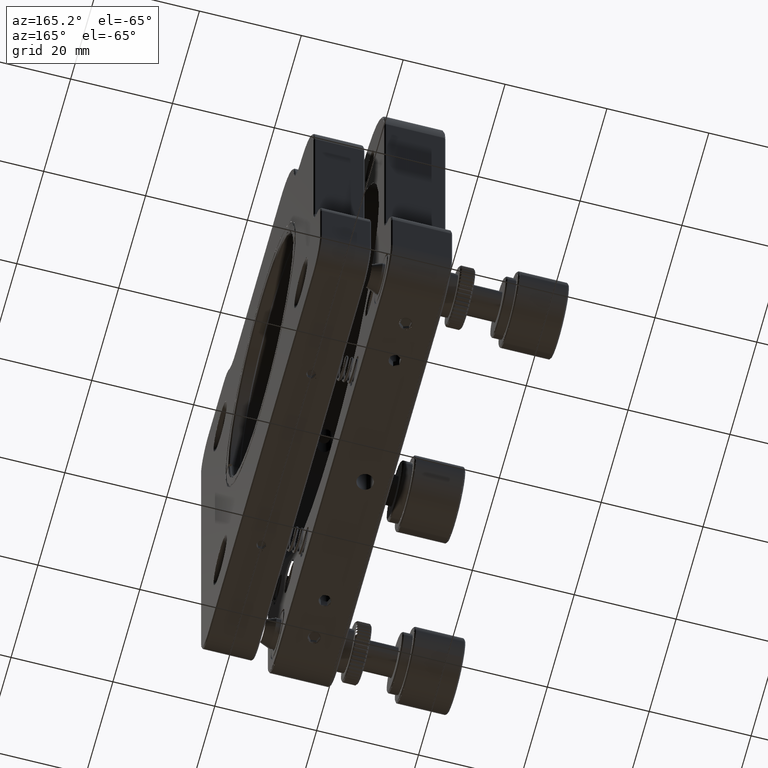
[diagram: clean part render]
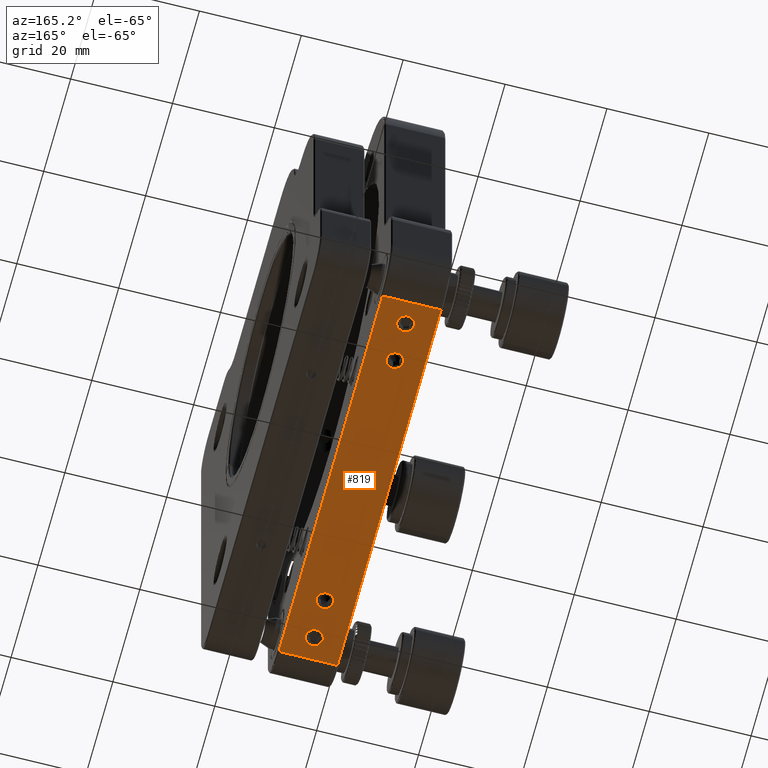
[diagram: same view with one face highlighted and labeled with its STEP entity id]
A machine part, auxiliary view. The second image highlights one B-rep face of the part: STEP entity #819.
In plain terms, the highlighted planar face has unit normal (0, 0, -1).
Its self-contained STEP definition (entity closure, byte-faithful):
#388 = CARTESIAN_POINT ( 'NONE',  ( -13.51084903560953876, 24.77196299272643287, 8.999999999999998224 ) ) ;
#542 = CARTESIAN_POINT ( 'NONE',  ( -14.78173753263479107, 27.41805222395253949, 9.000000000000000000 ) ) ;
#743 = CARTESIAN_POINT ( 'NONE',  ( -15.23457161748719813, 24.16733184952079583, 8.999999999999996447 ) ) ;
#819 = ADVANCED_FACE ( 'NONE', ( #115300, #104980, #97105, #24510, #86848, #97678 ), #23346, .T. ) ;
#931 = EDGE_CURVE ( 'NONE', #64383, #89613, #87450, .T. ) ;
#979 = CARTESIAN_POINT ( 'NONE',  ( -13.31654514584120363, 25.11078003931699953, 8.999999999999998224 ) ) ;
#1731 = CARTESIAN_POINT ( 'NONE',  ( -16.15097112533723944, 26.76417198375309425, 9.000000000000000000 ) ) ;
#2134 = VERTEX_POINT ( 'NONE', #82138 ) ;
#2311 = EDGE_CURVE ( 'NONE', #110151, #71763, #25822, .T. ) ;
#2381 = CARTESIAN_POINT ( 'NONE',  ( -13.23017444175208190, -34.63559404877107539, 8.999999999999984013 ) ) ;
#2460 = CARTESIAN_POINT ( 'NONE',  ( -14.33708796692758014, -7.522613110463066910, 8.999999999999991118 ) ) ;
#2485 = EDGE_CURVE ( 'NONE', #2134, #96844, #44459, .T. ) ;
#2675 = CARTESIAN_POINT ( 'NONE',  ( -14.48067599375516146, 19.38125391123104535, 8.999999999999998224 ) ) ;
#2921 = CARTESIAN_POINT ( 'NONE',  ( -14.58083207790496871, 27.39921119312859332, 8.999999999999998224 ) ) ;
#2971 = CARTESIAN_POINT ( 'NONE',  ( -13.25902915717621511, -34.73629308373771352, 8.999999999999984013 ) ) ;
#3041 = CARTESIAN_POINT ( 'NONE',  ( -15.27348498784703601, -6.677996052883401035, 8.999999999999992895 ) ) ;
#3263 = CARTESIAN_POINT ( 'NONE',  ( -14.32654927586867544, 19.33994833676814906, 8.999999999999996447 ) ) ;
#3264 = CARTESIAN_POINT ( 'NONE',  ( -16.48819752938592131, -9.746297446394430963, 8.999999999999987566 ) ) ;
#3406 = CARTESIAN_POINT ( 'NONE',  ( -15.23434009021241131, -40.61712464858943861, 8.999999999999982236 ) ) ;
#3633 = CARTESIAN_POINT ( 'NONE',  ( -15.55566844360246925, -6.604844963723030205, 8.999999999999994671 ) ) ;
#3856 = ORIENTED_EDGE ( 'NONE', *, *, #94583, .T. ) ;
#3860 = CARTESIAN_POINT ( 'NONE',  ( -15.63421988912882377, -9.881993568912042392, 8.999999999999992895 ) ) ;
#3985 = DIRECTION ( 'NONE',  ( 1.000000000000000000, 0.000000000000000000, 0.000000000000000000 ) ) ;
#4165 = CARTESIAN_POINT ( 'NONE',  ( -13.27697362159823768, -34.78935760438999125, 8.999999999999984013 ) ) ;
#4476 = CARTESIAN_POINT ( 'NONE',  ( -16.00365604690554733, -9.873041050730968493, 8.999999999999989342 ) ) ;
#4604 = CARTESIAN_POINT ( 'NONE',  ( -16.43164571919449557, -41.82827097475312428, 8.999999999999985789 ) ) ;
#4699 = CARTESIAN_POINT ( 'NONE',  ( -16.34527501510170922, 26.42535493717198847, 8.999999999999994671 ) ) ;
#4756 = CARTESIAN_POINT ( 'NONE',  ( -15.63743764332758701, -35.67240469882207066, 8.999999999999982236 ) ) ;
#4776 = CARTESIAN_POINT ( 'NONE',  ( -13.83377077345395811, -43.55140526374682963, 8.999999999999982236 ) ) ;
#4832 = CARTESIAN_POINT ( 'NONE',  ( -15.02438251764036181, -6.791460324687900396, 8.999999999999989342 ) ) ;
#5187 = CARTESIAN_POINT ( 'NONE',  ( -13.97461818860606009, -32.82039914392306912, 8.999999999999980460 ) ) ;
#5366 = CARTESIAN_POINT ( 'NONE',  ( -15.23457161749072597, -43.83266815047808507, 8.999999999999980460 ) ) ;
#5422 = CARTESIAN_POINT ( 'NONE',  ( -17.46978607915811921, -8.034529433291307754, 8.999999999999991118 ) ) ;
#5781 = CARTESIAN_POINT ( 'NONE',  ( -13.51084895482073023, 16.77196310136164215, 8.999999999999996447 ) ) ;
#5785 = CARTESIAN_POINT ( 'NONE',  ( -13.18091008047275103, -34.18155589100997815, 8.999999999999987566 ) ) ;
#5961 = CARTESIAN_POINT ( 'NONE',  ( -14.12159067920201494, -43.72575462531688117, 8.999999999999985789 ) ) ;
#6067 = ORIENTED_EDGE ( 'NONE', *, *, #41384, .T. ) ;
#6380 = CARTESIAN_POINT ( 'NONE',  ( -13.21772359383951212, 17.41783369509476387, 8.999999999999992895 ) ) ;
#6383 = CARTESIAN_POINT ( 'NONE',  ( -13.19894142436906215, -33.98319773671883581, 8.999999999999985789 ) ) ;
#6497 = B_SPLINE_CURVE_WITH_KNOTS ( 'NONE', 3,
 ( #52928, #61408, #106778, #79581, #107960, #35400, #91027, #52334, #60825, #62015, #98879, #116505, #23943, #97686, #14857, #115899, #16060, #34181, #69902, #89826, #43277, #6972, #33604, #80766, #16648, #108576, #98290, #8188, #51748, #88648, #43865, #53530, #15457, #45083, #5781, #70487, #109180, #107362, #118288, #71078, #24518, #89240, #6380, #33004, #80169, #72279, #90416, #25722 ),
 .UNSPECIFIED., .F., .F.,
 ( 4, 2, 2, 2, 2, 2, 2, 2, 2, 2, 2, 2, 2, 2, 2, 2, 2, 2, 2, 2, 2, 2, 2, 4 ),
 ( 0.000000000000000000, 0.03124999999999958367, 0.06249999999999916733, 0.1250000000000003886, 0.1875000000000016098, 0.2500000000000028311, 0.3125000000000040523, 0.3437500000000051625, 0.3750000000000063283, 0.4062500000000074385, 0.4375000000000086042, 0.4531250000000084377, 0.4687500000000082712, 0.5000000000000079936, 0.6250000000000056621, 0.6875000000000041078, 0.7500000000000026645, 0.8125000000000011102, 0.8437500000000009992, 0.8750000000000007772, 0.9062500000000005551, 0.9375000000000003331, 0.9687500000000002220, 1.000000000000000000 ),
 .UNSPECIFIED. ) ;
#6562 = CARTESIAN_POINT ( 'NONE',  ( -16.07763736986159131, -43.31860424843489454, 8.999999999999980460 ) ) ;
#6799 = ORIENTED_EDGE ( 'NONE', *, *, #51627, .T. ) ;
#6972 = CARTESIAN_POINT ( 'NONE',  ( -15.10615140951710522, 16.14097989590917237, 8.999999999999994671 ) ) ;
#7226 = CARTESIAN_POINT ( 'NONE',  ( -17.32177511593922858, -7.522787917507766764, 8.999999999999989342 ) ) ;
#7833 = CARTESIAN_POINT ( 'NONE',  ( -16.02760027180207913, -6.581871454607092886, 8.999999999999991118 ) ) ;
#8055 = CARTESIAN_POINT ( 'NONE',  ( -15.00365604690908228, 24.12695894926915585, 8.999999999999996447 ) ) ;
#8188 = CARTESIAN_POINT ( 'NONE',  ( -14.63421962184487946, 16.11800646424103434, 8.999999999999994671 ) ) ;
#8248 = ORIENTED_EDGE ( 'NONE', *, *, #67275, .T. ) ;
#8660 = CARTESIAN_POINT ( 'NONE',  ( -15.91763516901088416, 24.52128684701143868, 8.999999999999996447 ) ) ;
#8665 = ORIENTED_EDGE ( 'NONE', *, *, #109985, .T. ) ;
#8905 = CARTESIAN_POINT ( 'NONE',  ( -13.27697362159821637, 25.21064239560979914, 8.999999999999994671 ) ) ;
#9092 = CARTESIAN_POINT ( 'NONE',  ( -16.48091008047270023, -34.23193251175955254, 9.000000000000000000 ) ) ;
#9493 = CARTESIAN_POINT ( 'NONE',  ( -13.18091008047272084, 25.76806748824050075, 9.000000000000000000 ) ) ;
#9636 = CARTESIAN_POINT ( 'NONE',  ( -13.25643080051960432, 26.27346062851499298, 8.999999999999998224 ) ) ;
#9818 = VECTOR ( 'NONE', #114693, 1000.000000000000000 ) ;
#9991 = CARTESIAN_POINT ( 'NONE',  ( -13.18091008047272084, 17.76806748824049720, 9.000000000000000000 ) ) ;
#10148 = CARTESIAN_POINT ( 'NONE',  ( -14.34004504500721922, -8.941077106013299414, 8.999999999999989342 ) ) ;
#10441 = CARTESIAN_POINT ( 'NONE',  ( -16.07763736985016578, 24.68139575155394638, 8.999999999999994671 ) ) ;
#10832 = CARTESIAN_POINT ( 'NONE',  ( -14.63149181588790704, 27.40616844023654508, 8.999999999999994671 ) ) ;
#10880 = CARTESIAN_POINT ( 'NONE',  ( -16.48091008047274642, -34.28230913250975220, 8.999999999999982236 ) ) ;
#11177 = CARTESIAN_POINT ( 'NONE',  ( -14.42724829892870453, 19.36880306516435013, 8.999999999999998224 ) ) ;
#11457 = ORIENTED_EDGE ( 'NONE', *, *, #47658, .T. ) ;
#11780 = CARTESIAN_POINT ( 'NONE',  ( -16.34527481261394755, 18.42535506861282002, 8.999999999999996447 ) ) ;
#11789 = CARTESIAN_POINT ( 'NONE',  ( -13.18091008047274038, -34.23193251175955254, 9.000000000000000000 ) ) ;
#11920 = CARTESIAN_POINT ( 'NONE',  ( -13.38829764543138801, -41.42327963261960377, 8.999999999999982236 ) ) ;
#12021 = CARTESIAN_POINT ( 'NONE',  ( -13.74418499193529719, 27.01484812946995717, 9.000000000000000000 ) ) ;
#12077 = CARTESIAN_POINT ( 'NONE',  ( -15.00365604690361110, -35.87304105073112481, 8.999999999999980460 ) ) ;
#12153 = CARTESIAN_POINT ( 'NONE',  ( -14.22748581901809573, -7.828684952400565500, 8.999999999999991118 ) ) ;
#12517 = CARTESIAN_POINT ( 'NONE',  ( -14.27348498786111897, -40.67799605287864750, 8.999999999999982236 ) ) ;
#12663 = CARTESIAN_POINT ( 'NONE',  ( -15.54005467470268975, -35.72279754723514600, 8.999999999999982236 ) ) ;
#12736 = CARTESIAN_POINT ( 'NONE',  ( -15.42724854345780727, -6.631196873040036799, 8.999999999999989342 ) ) ;
#13696 = CARTESIAN_POINT ( 'NONE',  ( -15.91758181716970633, -32.98520522239381592, 8.999999999999984013 ) ) ;
#13860 = CARTESIAN_POINT ( 'NONE',  ( -13.41937671263556986, -35.08822440362661155, 8.999999999999980460 ) ) ;
#14127 = CARTESIAN_POINT ( 'NONE',  ( -16.48091008047270023, 25.76806748824050075, 9.000000000000000000 ) ) ;
#14391 = CARTESIAN_POINT ( 'NONE',  ( -16.48091008047270023, 25.76806748824050075, 9.000000000000000000 ) ) ;
#14464 = CARTESIAN_POINT ( 'NONE',  ( -13.41937671263327481, -43.08822440362253303, 8.999999999999978684 ) ) ;
#14525 = CARTESIAN_POINT ( 'NONE',  ( -16.82804938749563917, -6.912459759776162116, 8.999999999999991118 ) ) ;
#14857 = CARTESIAN_POINT ( 'NONE',  ( -15.63743730737194859, 16.32759518398834686, 8.999999999999992895 ) ) ;
#14861 = CARTESIAN_POINT ( 'NONE',  ( -16.46978607915812276, -34.03452943329164526, 8.999999999999987566 ) ) ;
#15042 = CARTESIAN_POINT ( 'NONE',  ( -15.10615171735193840, -43.85902005979454543, 8.999999999999980460 ) ) ;
#15457 = CARTESIAN_POINT ( 'NONE',  ( -13.74423821093869336, 16.52134031588834162, 8.999999999999994671 ) ) ;
#15461 = CARTESIAN_POINT ( 'NONE',  ( -14.58083207790599012, -32.60078880687126457, 8.999999999999982236 ) ) ;
#16060 = CARTESIAN_POINT ( 'NONE',  ( -15.48819719597543454, 16.25370245486443466, 8.999999999999994671 ) ) ;
#16062 = CARTESIAN_POINT ( 'NONE',  ( -16.34527501510159198, -33.57464506282880734, 8.999999999999985789 ) ) ;
#16238 = CARTESIAN_POINT ( 'NONE',  ( -15.38833517310351517, -43.78586897063428296, 8.999999999999982236 ) ) ;
#16594 = EDGE_LOOP ( 'NONE', ( #11457, #32470 ) ) ;
#16648 = CARTESIAN_POINT ( 'NONE',  ( -15.00365574936459545, 16.12695892098958694, 8.999999999999994671 ) ) ;
#16652 = CARTESIAN_POINT ( 'NONE',  ( -16.48091008047270023, -34.23193251175955254, 9.000000000000000000 ) ) ;
#16663 = CARTESIAN_POINT ( 'NONE',  ( -13.25643078177490075, 18.27346056709373201, 8.999999999999994671 ) ) ;
#17379 = CARTESIAN_POINT ( 'NONE',  ( -13.19918884228752098, 25.51782325098006865, 9.000000000000000000 ) ) ;
#17735 = CARTESIAN_POINT ( 'NONE',  ( -15.82701457598702532, 24.44800644337739115, 8.999999999999996447 ) ) ;
#18467 = CARTESIAN_POINT ( 'NONE',  ( -13.19238763686960425, 17.96873199333404614, 8.999999999999996447 ) ) ;
#19214 = CARTESIAN_POINT ( 'NONE',  ( -14.58412943923987370, -9.318657600294635301, 8.999999999999991118 ) ) ;
#19309 = CARTESIAN_POINT ( 'NONE',  ( -16.07769072170329849, 26.85479257677679854, 8.999999999999998224 ) ) ;
#19507 = CARTESIAN_POINT ( 'NONE',  ( -15.18114391617050174, 24.15488101065092508, 8.999999999999998224 ) ) ;
#19651 = CARTESIAN_POINT ( 'NONE',  ( -14.02438233122820854, 19.20853957074767848, 8.999999999999996447 ) ) ;
#19913 = CARTESIAN_POINT ( 'NONE',  ( -13.83480558496254709, 27.08812853310589119, 8.999999999999998224 ) ) ;
#20249 = CARTESIAN_POINT ( 'NONE',  ( -15.63956262249144658, 19.21068004124448336, 8.999999999999996447 ) ) ;
#20338 = ORIENTED_EDGE ( 'NONE', *, *, #107973, .T. ) ;
#21096 = CARTESIAN_POINT ( 'NONE',  ( -13.97461818859958527, 27.17960085607397147, 9.000000000000000000 ) ) ;
#21442 = CARTESIAN_POINT ( 'NONE',  ( -14.21772360288320591, -8.582166347457699018, 8.999999999999987566 ) ) ;
#21579 = CARTESIAN_POINT ( 'NONE',  ( -14.63149181588336312, -40.59383155976380664, 8.999999999999984013 ) ) ;
#21772 = ORIENTED_EDGE ( 'NONE', *, *, #96102, .T. ) ;
#21808 = CARTESIAN_POINT ( 'NONE',  ( -15.17362263154423729, -6.717567577129599066, 8.999999999999989342 ) ) ;
#22034 = CARTESIAN_POINT ( 'NONE',  ( -16.43164558934514119, 18.17172911941169744, 8.999999999999996447 ) ) ;
#22035 = CARTESIAN_POINT ( 'NONE',  ( -15.42748007070712823, -9.846740374914896066, 8.999999999999989342 ) ) ;
#22322 = CARTESIAN_POINT ( 'NONE',  ( -15.18114391618440706, -35.84511898934806595, 8.999999999999980460 ) ) ;
#22770 = CARTESIAN_POINT ( 'NONE',  ( -16.15097112534076729, -41.23582801625362748, 8.999999999999987566 ) ) ;
#22996 = CARTESIAN_POINT ( 'NONE',  ( -14.83480558495534218, -6.911871466897677507, 8.999999999999989342 ) ) ;
#23346 = PLANE ( 'NONE',  #65825 ) ;
#23357 = CARTESIAN_POINT ( 'NONE',  ( -15.54022948176893593, -32.73811039821530500, 8.999999999999982236 ) ) ;
#23370 = CARTESIAN_POINT ( 'NONE',  ( -16.24244344830488629, -41.37564061988419439, 8.999999999999982236 ) ) ;
#23469 = CARTESIAN_POINT ( 'NONE',  ( -16.47868528020980960, 25.86718405483470917, 8.999999999999992895 ) ) ;
#23522 = CARTESIAN_POINT ( 'NONE',  ( -13.19203408178733383, -34.42933559022731060, 8.999999999999984013 ) ) ;
#23541 = CARTESIAN_POINT ( 'NONE',  ( -13.74423834379408760, -43.47865980114637807, 8.999999999999982236 ) ) ;
#23935 = CARTESIAN_POINT ( 'NONE',  ( -9.080910080472710533, -8.231932511759508131, 9.000000000000000000 ) ) ;
#23943 = CARTESIAN_POINT ( 'NONE',  ( -15.82701424480202590, 16.44800630590264845, 8.999999999999994671 ) ) ;
#23945 = CARTESIAN_POINT ( 'NONE',  ( -15.02760027174344160, -32.58187145460298240, 8.999999999999985789 ) ) ;
#24051 = CARTESIAN_POINT ( 'NONE',  ( -16.43164571919353278, 26.17172902525063094, 8.999999999999998224 ) ) ;
#24122 = CARTESIAN_POINT ( 'NONE',  ( -16.46287873657596279, -42.48066728680117876, 8.999999999999982236 ) ) ;
#24510 = FACE_BOUND ( 'NONE', #32462, .T. ) ;
#24518 = CARTESIAN_POINT ( 'NONE',  ( -13.25902913783421155, 17.26370697721636915, 8.999999999999994671 ) ) ;
#24522 = CARTESIAN_POINT ( 'NONE',  ( -16.48091008047274997, -34.18223588600871210, 8.999999999999985789 ) ) ;
#24704 = CARTESIAN_POINT ( 'NONE',  ( -16.48091008047274997, -42.28230913250767742, 8.999999999999985789 ) ) ;
#25117 = CARTESIAN_POINT ( 'NONE',  ( -13.22748581901807796, -33.82868495240082751, 8.999999999999984013 ) ) ;
#25722 = CARTESIAN_POINT ( 'NONE',  ( -13.18091008047272084, 17.76806748824049720, 9.000000000000000000 ) ) ;
#25724 = CARTESIAN_POINT ( 'NONE',  ( -15.23434009021158175, -32.61712464858892702, 8.999999999999984013 ) ) ;
#25822 = B_SPLINE_CURVE_WITH_KNOTS ( 'NONE', 3,
 ( #103214, #57272, #95925, #112927, #113511, #84499, #38537, #48203, #11920, #67540, #31232, #30037, #112311, #76028, #66944, #103806, #39726, #12517, #59055, #76601, #30633, #68136, #104400, #21579, #58474, #95335, #49389, #86276, #3406, #40314, #114108, #71092, #43880, #79595, #22770, #23370, #107374, #96526, #115320, #62028, #51173, #4604, #33616, #89252, #59659, #71698, #107974, #70500 ),
 .UNSPECIFIED., .F., .F.,
 ( 4, 2, 2, 2, 2, 2, 2, 2, 2, 2, 2, 2, 2, 2, 2, 2, 2, 2, 2, 2, 2, 2, 2, 4 ),
 ( 0.000000000000000000, 0.03125000000000247719, 0.06250000000000495437, 0.1250000000000058287, 0.1875000000000067168, 0.2500000000000076050, 0.3125000000000084932, 0.3437500000000082712, 0.3750000000000080491, 0.4062500000000078826, 0.4375000000000077161, 0.4531250000000070499, 0.4687500000000063838, 0.5000000000000057732, 0.6250000000000046629, 0.6875000000000044409, 0.7500000000000041078, 0.8125000000000038858, 0.8437500000000032196, 0.8750000000000026645, 0.9062500000000019984, 0.9375000000000013323, 0.9687500000000007772, 1.000000000000000000 ),
 .UNSPECIFIED. ) ;
#25901 = CARTESIAN_POINT ( 'NONE',  ( -14.93019761520449329, -43.87969223145060482, 8.999999999999982236 ) ) ;
#25962 = CARTESIAN_POINT ( 'NONE',  ( -17.43164571919434991, -7.828270974754231837, 8.999999999999992895 ) ) ;
#26330 = CARTESIAN_POINT ( 'NONE',  ( -13.58418269307262349, 18.85473911111418488, 8.999999999999994671 ) ) ;
#26433 = CARTESIAN_POINT ( 'NONE',  ( -13.23017444175241941, 25.36440595122789077, 8.999999999999996447 ) ) ;
#26787 = CARTESIAN_POINT ( 'NONE',  ( -13.83377077344224837, 24.44859473626218715, 8.999999999999996447 ) ) ;
#26988 = ORIENTED_EDGE ( 'NONE', *, *, #2311, .T. ) ;
#27106 = CARTESIAN_POINT ( 'NONE',  ( -13.19918884228791534, -42.48217674902333130, 8.999999999999984013 ) ) ;
#27212 = ORIENTED_EDGE ( 'NONE', *, *, #98860, .T. ) ;
#27684 = CARTESIAN_POINT ( 'NONE',  ( -16.54005467472984847, -9.722797547223198222, 8.999999999999991118 ) ) ;
#27704 = CARTESIAN_POINT ( 'NONE',  ( -17.48091008047269668, -8.231932511759518789, 9.000000000000000000 ) ) ;
#27822 = CARTESIAN_POINT ( 'NONE',  ( -16.07763736985018355, -35.31860424844703061, 8.999999999999982236 ) ) ;
#27833 = EDGE_CURVE ( 'NONE', #84457, #41072, #74349, .T. ) ;
#27980 = CARTESIAN_POINT ( 'NONE',  ( -16.48091008047274642, 25.71769086749111111, 8.999999999999996447 ) ) ;
#28264 = CARTESIAN_POINT ( 'NONE',  ( -16.91763516899562347, -9.478713153002775726, 8.999999999999991118 ) ) ;
#28280 = CARTESIAN_POINT ( 'NONE',  ( -13.27697362159995542, -42.78935760439529190, 8.999999999999984013 ) ) ;
#28564 = CARTESIAN_POINT ( 'NONE',  ( -16.32473219402107745, 25.05874808695126532, 8.999999999999998224 ) ) ;
#28958 = CARTESIAN_POINT ( 'NONE',  ( -13.58418279109454474, 26.85473922492664300, 8.999999999999998224 ) ) ;
#29301 = CARTESIAN_POINT ( 'NONE',  ( -14.12176528396436836, 19.25893242730741406, 8.999999999999998224 ) ) ;
#29896 = CARTESIAN_POINT ( 'NONE',  ( -15.54022914606551353, 19.26188970748169993, 8.999999999999994671 ) ) ;
#30037 = CARTESIAN_POINT ( 'NONE',  ( -13.74418499194061027, -40.98515187052692710, 8.999999999999984013 ) ) ;
#30189 = CARTESIAN_POINT ( 'NONE',  ( -14.88008262829784734, -35.88191724747104416, 8.999999999999980460 ) ) ;
#30320 = VECTOR ( 'NONE', #33717, 1000.000000000000000 ) ;
#30489 = CARTESIAN_POINT ( 'NONE',  ( -14.39043789340008317, -9.038460074590512150, 8.999999999999991118 ) ) ;
#30633 = CARTESIAN_POINT ( 'NONE',  ( -14.48067624477669213, -40.61874603417013674, 8.999999999999980460 ) ) ;
#31088 = CARTESIAN_POINT ( 'NONE',  ( -14.78173726038365743, 19.41805221566626116, 8.999999999999996447 ) ) ;
#31089 = CARTESIAN_POINT ( 'NONE',  ( -15.88008262830872752, -9.881917247471367460, 8.999999999999987566 ) ) ;
#31214 = EDGE_LOOP ( 'NONE', ( #26988, #8665 ) ) ;
#31232 = CARTESIAN_POINT ( 'NONE',  ( -13.58418279108924587, -41.14526077507649404, 8.999999999999982236 ) ) ;
#31928 = CARTESIAN_POINT ( 'NONE',  ( -16.38484653934974133, 26.32549258086319810, 8.999999999999996447 ) ) ;
#32415 = CARTESIAN_POINT ( 'NONE',  ( -14.48067624476929183, -32.61874603417082596, 8.999999999999985789 ) ) ;
#32462 = EDGE_LOOP ( 'NONE', ( #74611, #20338 ) ) ;
#32470 = ORIENTED_EDGE ( 'NONE', *, *, #27833, .T. ) ;
#32574 = CARTESIAN_POINT ( 'NONE',  ( -13.18091008047274038, -34.23193251175955254, 9.000000000000000000 ) ) ;
#32865 = EDGE_LOOP ( 'NONE', ( #8248, #6799 ) ) ;
#33004 = CARTESIAN_POINT ( 'NONE',  ( -13.19918883781088326, 17.51782328148863854, 8.999999999999998224 ) ) ;
#33271 = CARTESIAN_POINT ( 'NONE',  ( -14.18091008047272084, -8.231932511759518789, 9.000000000000000000 ) ) ;
#33604 = CARTESIAN_POINT ( 'NONE',  ( -15.08098777758861964, 16.13692374293182041, 8.999999999999996447 ) ) ;
#33606 = CARTESIAN_POINT ( 'NONE',  ( -14.78173753265507528, -32.58194777604863646, 8.999999999999982236 ) ) ;
#33616 = CARTESIAN_POINT ( 'NONE',  ( -16.44409655806198600, -41.88169867605709129, 8.999999999999984013 ) ) ;
#33717 = DIRECTION ( 'NONE',  ( 1.000000000000000000, 0.000000000000000000, 0.000000000000000000 ) ) ;
#33777 = CARTESIAN_POINT ( 'NONE',  ( -15.91763516899948350, -43.47871315299969552, 8.999999999999978684 ) ) ;
#34181 = CARTESIAN_POINT ( 'NONE',  ( -15.38833484397164852, 16.21413094393496479, 8.999999999999992895 ) ) ;
#34184 = CARTESIAN_POINT ( 'NONE',  ( -13.58418279107257831, -33.14526077509182755, 8.999999999999985789 ) ) ;
#34429 = CARTESIAN_POINT ( 'NONE',  ( -17.07769072169401170, -7.145207423213161491, 8.999999999999992895 ) ) ;
#34792 = CARTESIAN_POINT ( 'NONE',  ( -16.27138226754575356, -33.42540494893044212, 8.999999999999984013 ) ) ;
#35400 = CARTESIAN_POINT ( 'NONE',  ( -16.43433421181480014, 17.36481983396054218, 8.999999999999994671 ) ) ;
#35415 = CARTESIAN_POINT ( 'NONE',  ( -13.33708792815129840, 18.47738680566586567, 8.999999999999996447 ) ) ;
#35856 = CARTESIAN_POINT ( 'NONE',  ( -14.88008262830699735, 24.11808275252827016, 8.999999999999998224 ) ) ;
#36300 = CARTESIAN_POINT ( 'NONE',  ( -16.43433434192600018, -34.63518007112440955, 8.999999999999984013 ) ) ;
#36452 = CARTESIAN_POINT ( 'NONE',  ( -16.47861456863002871, 25.66748263740974778, 8.999999999999994671 ) ) ;
#36696 = CARTESIAN_POINT ( 'NONE',  ( -13.41937671263815801, 24.91177559636931349, 8.999999999999998224 ) ) ;
#36771 = CARTESIAN_POINT ( 'NONE',  ( -13.25902915717466612, -42.73629308373167390, 8.999999999999985789 ) ) ;
#37056 = CARTESIAN_POINT ( 'NONE',  ( -16.46943252125913659, 25.56740295858308087, 8.999999999999996447 ) ) ;
#37354 = CARTESIAN_POINT ( 'NONE',  ( -15.93019761520071675, -9.879692231450167839, 8.999999999999987566 ) ) ;
#37447 = CARTESIAN_POINT ( 'NONE',  ( -15.54022948177529173, 27.26188960178214060, 9.000000000000000000 ) ) ;
#37650 = CARTESIAN_POINT ( 'NONE',  ( -14.63421988913575689, 24.11800643108939468, 8.999999999999994671 ) ) ;
#37747 = CARTESIAN_POINT ( 'NONE',  ( -9.080910080472710533, 30.26806748824050430, 9.000000000000000000 ) ) ;
#37891 = CARTESIAN_POINT ( 'NONE',  ( -13.25902915717581720, 25.26370691626338782, 8.999999999999996447 ) ) ;
#37959 = CARTESIAN_POINT ( 'NONE',  ( -13.21772360288286663, -42.58216634745586049, 8.999999999999984013 ) ) ;
#37989 = ORIENTED_EDGE ( 'NONE', *, *, #104729, .T. ) ;
#38389 = CARTESIAN_POINT ( 'NONE',  ( -16.38484636451241272, 18.32549269941968362, 8.999999999999992895 ) ) ;
#38537 = CARTESIAN_POINT ( 'NONE',  ( -13.25643080051101208, -41.72653937150480630, 8.999999999999982236 ) ) ;
#38637 = CARTESIAN_POINT ( 'NONE',  ( -16.24244344830662357, 26.62435938011244474, 8.999999999999994671 ) ) ;
#38685 = CARTESIAN_POINT ( 'NONE',  ( -16.47861456863003227, -34.33251736259158093, 8.999999999999984013 ) ) ;
#39288 = CARTESIAN_POINT ( 'NONE',  ( -14.93019761520461230, -35.87969223144983744, 8.999999999999982236 ) ) ;
#39582 = CARTESIAN_POINT ( 'NONE',  ( -16.10615171734450612, -9.859020059795470914, 8.999999999999991118 ) ) ;
#39726 = CARTESIAN_POINT ( 'NONE',  ( -14.17362263153015256, -40.71756757713435348, 8.999999999999980460 ) ) ;
#39876 = CARTESIAN_POINT ( 'NONE',  ( -13.18091008047274926, -34.28162913751036456, 8.999999999999984013 ) ) ;
#39943 = CARTESIAN_POINT ( 'NONE',  ( -15.32654950849792996, -6.660051588461764815, 8.999999999999991118 ) ) ;
#40168 = CARTESIAN_POINT ( 'NONE',  ( -16.32177489998446518, 18.47721221886191145, 8.999999999999996447 ) ) ;
#40314 = CARTESIAN_POINT ( 'NONE',  ( -15.54022948176852204, -40.73811039821502789, 8.999999999999980460 ) ) ;
#40472 = CARTESIAN_POINT ( 'NONE',  ( -15.82701457602864181, -35.55199355659618021, 8.999999999999980460 ) ) ;
#40550 = CARTESIAN_POINT ( 'NONE',  ( -15.58083207790309288, -6.600788806871481285, 8.999999999999992895 ) ) ;
#40783 = CARTESIAN_POINT ( 'NONE',  ( -17.48091008047269668, -8.231932511759518789, 9.000000000000000000 ) ) ;
#40978 = B_SPLINE_CURVE_WITH_KNOTS ( 'NONE', 3,
 ( #9092, #10880, #38685, #48352, #119183, #36300, #73196, #55039, #91926, #110691, #27822, #83481, #40472, #69475, #4756, #12663, #87624, #103965, #106342, #85838, #22322, #85245, #58621, #113670, #12077, #39288, #30189, #97275, #68870, #67096, #41662, #48951, #86427, #78547, #115467, #13860, #76173, #50736, #113075, #4165, #2971, #2381, #68280, #94900, #23522, #95480, #39876, #32574 ),
 .UNSPECIFIED., .F., .F.,
 ( 4, 2, 2, 2, 2, 2, 2, 2, 2, 2, 2, 2, 2, 2, 2, 2, 2, 2, 2, 2, 2, 2, 2, 4 ),
 ( 0.000000000000000000, 0.03124999999999900080, 0.06249999999999800160, 0.1249999999999960032, 0.1874999999999940048, 0.2499999999999920064, 0.3124999999999900080, 0.3437499999999898415, 0.3749999999999896749, 0.4062499999999895084, 0.4374999999999893419, 0.4531249999999893974, 0.4687499999999894529, 0.4999999999999898970, 0.6249999999999930056, 0.6874999999999957812, 0.7499999999999985567, 0.8125000000000013323, 0.8437500000000011102, 0.8750000000000008882, 0.9062500000000006661, 0.9375000000000004441, 0.9687500000000002220, 1.000000000000000000 ),
 .UNSPECIFIED. ) ;
#41072 = VERTEX_POINT ( 'NONE', #33271 ) ;
#41155 = CARTESIAN_POINT ( 'NONE',  ( -14.18320559231547051, -8.131347660928490484, 8.999999999999989342 ) ) ;
#41277 = B_SPLINE_CURVE_WITH_KNOTS ( 'NONE', 3,
 ( #110841, #27980, #36452, #37056, #64854, #47312, #92674, #28564, #64277, #46724, #10441, #8660, #17735, #44949, #72739, #93274, #118749, #63686, #83640, #743, #19507, #102320, #82434, #56387, #8055, #55197, #35856, #37650, #74529, #119338, #109641, #26787, #73344, #64511, #388, #36696, #83279, #55441, #979, #8905, #37891, #26433, #74182, #17379, #73588, #45191, #92322, #9493 ),
 .UNSPECIFIED., .F., .F.,
 ( 4, 2, 2, 2, 2, 2, 2, 2, 2, 2, 2, 2, 2, 2, 2, 2, 2, 2, 2, 2, 2, 2, 2, 4 ),
 ( 0.000000000000000000, 0.03125000000000145717, 0.06250000000000291434, 0.1250000000000034139, 0.1875000000000039135, 0.2500000000000043854, 0.3125000000000048850, 0.3437500000000054401, 0.3750000000000050515, 0.4062500000000047184, 0.4375000000000043854, 0.4531250000000044409, 0.4687500000000044409, 0.5000000000000042188, 0.6250000000000035527, 0.6875000000000033307, 0.7500000000000029976, 0.8125000000000026645, 0.8437500000000022204, 0.8750000000000017764, 0.9062500000000014433, 0.9375000000000009992, 0.9687500000000005551, 1.000000000000000000 ),
 .UNSPECIFIED. ) ;
#41384 = EDGE_CURVE ( 'NONE', #108026, #76079, #80240, .T. ) ;
#41387 = CARTESIAN_POINT ( 'NONE',  ( -16.68720197234155478, -9.643465879595568779, 8.999999999999989342 ) ) ;
#41494 = DIRECTION ( 'NONE',  ( 0.000000000000000000, 2.252829116096735397E-16, -1.000000000000000000 ) ) ;
#41662 = CARTESIAN_POINT ( 'NONE',  ( -14.02225720132021713, -35.67454494679338950, 8.999999999999982236 ) ) ;
#42098 = CARTESIAN_POINT ( 'NONE',  ( -14.55566844360439660, -32.60484496372289698, 8.999999999999980460 ) ) ;
#42217 = CARTESIAN_POINT ( 'NONE',  ( -14.83091008047272119, 30.26806748824050430, 9.000000000000000000 ) ) ;
#42332 = CARTESIAN_POINT ( 'NONE',  ( -15.78173753264041501, -6.581947776047603504, 8.999999999999989342 ) ) ;
#42671 = CARTESIAN_POINT ( 'NONE',  ( -21.73211008047274717, 37.96926748824049724, 9.000000000000000000 ) ) ;
#43277 = CARTESIAN_POINT ( 'NONE',  ( -15.18114360165456667, 16.15488095497471832, 8.999999999999994671 ) ) ;
#43279 = CARTESIAN_POINT ( 'NONE',  ( -13.74418499195730270, -32.98515187051157227, 8.999999999999985789 ) ) ;
#43519 = CARTESIAN_POINT ( 'NONE',  ( -16.63956295962078613, -6.789320076721332420, 8.999999999999991118 ) ) ;
#43865 = CARTESIAN_POINT ( 'NONE',  ( -14.02225701477125952, 16.32545515872817532, 8.999999999999996447 ) ) ;
#43869 = CARTESIAN_POINT ( 'NONE',  ( -14.65816411404209596, -32.59082397278753973, 8.999999999999984013 ) ) ;
#43880 = CARTESIAN_POINT ( 'NONE',  ( -15.91758181715161058, -40.98520522237262753, 8.999999999999984013 ) ) ;
#44055 = CARTESIAN_POINT ( 'NONE',  ( -15.08098808305578409, -43.86307621664534651, 8.999999999999980460 ) ) ;
#44459 = B_SPLINE_CURVE_WITH_KNOTS ( 'NONE', 3,
 ( #9991, #46867, #110382, #18467, #83777, #99498, #16663, #35415, #72292, #109196, #26330, #66200, #74676, #47450, #19651, #29301, #67400, #57126, #3263, #11177, #2675, #104863, #66800, #57730, #56529, #94001, #31088, #84356, #94604, #29896, #20249, #85550, #75877, #77052, #86129, #95198, #93411, #40168, #11780, #38389, #67991, #22034, #86729, #111566, #48655, #48063, #103664, #104258 ),
 .UNSPECIFIED., .F., .F.,
 ( 4, 2, 2, 2, 2, 2, 2, 2, 2, 2, 2, 2, 2, 2, 2, 2, 2, 2, 2, 2, 2, 2, 2, 4 ),
 ( 0.000000000000000000, 0.03124999999999925060, 0.06249999999999850120, 0.1249999999999990563, 0.1874999999999996114, 0.2500000000000001665, 0.3125000000000007216, 0.3437500000000013878, 0.3750000000000021094, 0.4062500000000027756, 0.4375000000000034972, 0.4531250000000032752, 0.4687500000000030531, 0.5000000000000028866, 0.6250000000000033307, 0.6875000000000029976, 0.7500000000000027756, 0.8125000000000024425, 0.8437500000000021094, 0.8750000000000016653, 0.9062500000000012212, 0.9375000000000007772, 0.9687500000000004441, 1.000000000000000000 ),
 .UNSPECIFIED. ) ;
#44949 = CARTESIAN_POINT ( 'NONE',  ( -15.68720197234380009, 24.35653412040591448, 8.999999999999998224 ) ) ;
#45083 = CARTESIAN_POINT ( 'NONE',  ( -13.58412934164826957, 16.68134251311995087, 8.999999999999996447 ) ) ;
#45191 = CARTESIAN_POINT ( 'NONE',  ( -13.18313488073565942, 25.66895092164505598, 8.999999999999996447 ) ) ;
#46430 = CARTESIAN_POINT ( 'NONE',  ( -17.43433434192571951, -8.635180071126576706, 8.999999999999991118 ) ) ;
#46540 = CARTESIAN_POINT ( 'NONE',  ( -20.58091008047275139, 30.26806748824050430, 9.000000000000000000 ) ) ;
#46724 = CARTESIAN_POINT ( 'NONE',  ( -16.15038283245045392, 24.77092818120951989, 8.999999999999998224 ) ) ;
#46867 = CARTESIAN_POINT ( 'NONE',  ( -13.18091008047274748, 17.81844410276153212, 8.999999999999994671 ) ) ;
#47312 = CARTESIAN_POINT ( 'NONE',  ( -16.43433434192676046, 25.36481992887795656, 8.999999999999998224 ) ) ;
#47450 = CARTESIAN_POINT ( 'NONE',  ( -13.97461801142422644, 19.17960074836155115, 8.999999999999996447 ) ) ;
#47658 = EDGE_CURVE ( 'NONE', #41072, #84457, #68816, .T. ) ;
#48063 = CARTESIAN_POINT ( 'NONE',  ( -16.47868524703328319, 17.86718408208007958, 8.999999999999996447 ) ) ;
#48203 = CARTESIAN_POINT ( 'NONE',  ( -13.33708796692842391, -41.52261311046000003, 8.999999999999982236 ) ) ;
#48352 = CARTESIAN_POINT ( 'NONE',  ( -16.46943252125913304, -34.43259704141827626, 8.999999999999980460 ) ) ;
#48655 = CARTESIAN_POINT ( 'NONE',  ( -16.46978601381427154, 17.96547061877421569, 8.999999999999994671 ) ) ;
#48904 = CARTESIAN_POINT ( 'NONE',  ( -14.17362263154732460, 27.28243242287132730, 8.999999999999998224 ) ) ;
#48951 = CARTESIAN_POINT ( 'NONE',  ( -13.83377077345429740, -35.55140526374722043, 8.999999999999984013 ) ) ;
#49245 = CARTESIAN_POINT ( 'NONE',  ( -17.32473219402998410, -8.941251913031145193, 8.999999999999992895 ) ) ;
#49389 = CARTESIAN_POINT ( 'NONE',  ( -14.78173753263305557, -40.58194777604731485, 8.999999999999985789 ) ) ;
#49560 = CARTESIAN_POINT ( 'NONE',  ( -14.83091008047272119, -46.73193251175950280, 9.000000000000000000 ) ) ;
#49611 = CARTESIAN_POINT ( 'NONE',  ( -15.48067624477313586, -6.618746034170378323, 8.999999999999992895 ) ) ;
#49845 = CARTESIAN_POINT ( 'NONE',  ( -17.46287873657724177, -8.480667286795963378, 8.999999999999991118 ) ) ;
#50447 = CARTESIAN_POINT ( 'NONE',  ( -16.23457161749053768, -9.832668150478834690, 8.999999999999989342 ) ) ;
#50571 = CARTESIAN_POINT ( 'NONE',  ( -15.63956295963708776, -32.78932007673213178, 8.999999999999984013 ) ) ;
#50736 = CARTESIAN_POINT ( 'NONE',  ( -13.34004504500530075, -34.94107710600902550, 8.999999999999984013 ) ) ;
#51160 = CARTESIAN_POINT ( 'NONE',  ( -13.33708796692764409, -33.52261311046434145, 8.999999999999984013 ) ) ;
#51173 = CARTESIAN_POINT ( 'NONE',  ( -16.40279100376816857, -41.72757193977629697, 8.999999999999984013 ) ) ;
#51340 = CARTESIAN_POINT ( 'NONE',  ( -13.39043789340095714, -43.03846007459309675, 8.999999999999980460 ) ) ;
#51627 = EDGE_CURVE ( 'NONE', #113404, #62009, #83673, .T. ) ;
#51748 = CARTESIAN_POINT ( 'NONE',  ( -14.42747982213746560, 16.15325968997159123, 8.999999999999996447 ) ) ;
#51750 = CARTESIAN_POINT ( 'NONE',  ( -16.47868528020982737, -34.13281594516497108, 8.999999999999987566 ) ) ;
#51927 = CARTESIAN_POINT ( 'NONE',  ( -15.03032834507284221, -43.87003346375332313, 8.999999999999978684 ) ) ;
#51982 = CARTESIAN_POINT ( 'NONE',  ( -15.73162254575159125, -6.584172792068786251, 8.999999999999994671 ) ) ;
#52334 = CARTESIAN_POINT ( 'NONE',  ( -16.32473197747847493, 17.05874794970194586, 8.999999999999994671 ) ) ;
#52928 = CARTESIAN_POINT ( 'NONE',  ( -16.48091008047270023, 17.76806748824049720, 9.000000000000000000 ) ) ;
#52931 = CARTESIAN_POINT ( 'NONE',  ( -16.38484653934987278, -33.67450741913624057, 8.999999999999985789 ) ) ;
#53064 = CARTESIAN_POINT ( 'NONE',  ( -16.48091008047270023, 17.76806748824049720, 9.000000000000000000 ) ) ;
#53110 = CARTESIAN_POINT ( 'NONE',  ( -15.33527065244444998, -43.80381343505811742, 8.999999999999980460 ) ) ;
#53530 = CARTESIAN_POINT ( 'NONE',  ( -13.83377062265442348, 16.44859485128282728, 8.999999999999992895 ) ) ;
#54918 = CARTESIAN_POINT ( 'NONE',  ( -13.18091008047272084, -42.23193251175955254, 9.000000000000000000 ) ) ;
#54926 = CARTESIAN_POINT ( 'NONE',  ( -9.080910080472710533, -46.73193251175950280, 9.000000000000000000 ) ) ;
#55039 = CARTESIAN_POINT ( 'NONE',  ( -16.32473219402175602, -34.94125191304912903, 8.999999999999984013 ) ) ;
#55197 = CARTESIAN_POINT ( 'NONE',  ( -14.93019761519365574, 24.12030776854945202, 8.999999999999996447 ) ) ;
#55441 = CARTESIAN_POINT ( 'NONE',  ( -13.34004504500716948, 25.05892289398642703, 8.999999999999996447 ) ) ;
#55492 = CARTESIAN_POINT ( 'NONE',  ( -17.27352251551024764, -9.040585390908729480, 8.999999999999991118 ) ) ;
#55510 = CARTESIAN_POINT ( 'NONE',  ( -13.18091008047274926, -42.28162913751209828, 8.999999999999984013 ) ) ;
#55590 = CARTESIAN_POINT ( 'NONE',  ( -13.18091008047272084, 25.76806748824050075, 9.000000000000000000 ) ) ;
#56088 = CARTESIAN_POINT ( 'NONE',  ( -14.51084903561134887, -9.228037007276331138, 8.999999999999992895 ) ) ;
#56182 = CARTESIAN_POINT ( 'NONE',  ( -15.63956295961490106, 27.21067992328218210, 8.999999999999998224 ) ) ;
#56387 = CARTESIAN_POINT ( 'NONE',  ( -15.03032834506077897, 24.12996653624488630, 8.999999999999996447 ) ) ;
#56529 = CARTESIAN_POINT ( 'NONE',  ( -14.65816384676802997, 19.40917599906016733, 8.999999999999996447 ) ) ;
#56777 = CARTESIAN_POINT ( 'NONE',  ( -13.18091008047274926, 25.81844410899082476, 8.999999999999998224 ) ) ;
#57126 = CARTESIAN_POINT ( 'NONE',  ( -14.27348476288328527, 19.32200386625628141, 8.999999999999996447 ) ) ;
#57272 = CARTESIAN_POINT ( 'NONE',  ( -13.18091008047274570, -42.18155589101042580, 8.999999999999980460 ) ) ;
#57379 = CARTESIAN_POINT ( 'NONE',  ( -14.12176548621859240, 27.25893252370613240, 9.000000000000001776 ) ) ;
#57730 = CARTESIAN_POINT ( 'NONE',  ( -14.63149155112456157, 19.40616840797958531, 8.999999999999998224 ) ) ;
#58326 = CARTESIAN_POINT ( 'NONE',  ( -14.19918884228756539, -8.482176749021297368, 8.999999999999989342 ) ) ;
#58474 = CARTESIAN_POINT ( 'NONE',  ( -14.65816411403466368, -40.59082397278821475, 8.999999999999982236 ) ) ;
#58621 = CARTESIAN_POINT ( 'NONE',  ( -15.08098808303330252, -35.86307621664784051, 8.999999999999980460 ) ) ;
#58688 = CARTESIAN_POINT ( 'NONE',  ( -14.74418499194051435, -6.985151870525436735, 8.999999999999989342 ) ) ;
#58915 = CARTESIAN_POINT ( 'NONE',  ( -14.23017444175316548, -8.635594048774864362, 8.999999999999985789 ) ) ;
#59055 = CARTESIAN_POINT ( 'NONE',  ( -14.32654950849454245, -40.66005158846203926, 8.999999999999982236 ) ) ;
#59113 = VECTOR ( 'NONE', #59829, 1000.000000000000000 ) ;
#59659 = CARTESIAN_POINT ( 'NONE',  ( -16.46978607915812987, -42.03452943329273950, 8.999999999999982236 ) ) ;
#59757 = CARTESIAN_POINT ( 'NONE',  ( -16.46263131865818252, 26.01831172549941940, 8.999999999999992895 ) ) ;
#59829 = DIRECTION ( 'NONE',  ( -1.000000000000000000, 0.000000000000000000, 0.000000000000000000 ) ) ;
#60244 = CARTESIAN_POINT ( 'NONE',  ( -16.07769072169136138, -33.14520742320959101, 8.999999999999987566 ) ) ;
#60428 = CARTESIAN_POINT ( 'NONE',  ( -13.51084903561931583, -43.22803700728994158, 8.999999999999980460 ) ) ;
#60489 = CARTESIAN_POINT ( 'NONE',  ( -15.63149181588602943, -6.593831559763524197, 8.999999999999989342 ) ) ;
#60825 = CARTESIAN_POINT ( 'NONE',  ( -16.27352227365071613, 16.95941446300586719, 8.999999999999992895 ) ) ;
#60827 = CARTESIAN_POINT ( 'NONE',  ( -14.32654950848679043, -32.66005158846417089, 8.999999999999980460 ) ) ;
#60933 = CARTESIAN_POINT ( 'NONE',  ( -16.27138226754340877, 26.57459505107446418, 8.999999999999996447 ) ) ;
#61001 = CARTESIAN_POINT ( 'NONE',  ( -16.40538936042984730, -42.73732565202516298, 8.999999999999984013 ) ) ;
#61408 = CARTESIAN_POINT ( 'NONE',  ( -16.48091006348701271, 17.71769085353940199, 8.999999999999994671 ) ) ;
#61410 = CARTESIAN_POINT ( 'NONE',  ( -16.15097112532989598, -33.23582801623208383, 8.999999999999984013 ) ) ;
#61596 = CARTESIAN_POINT ( 'NONE',  ( -15.82701457599728911, -43.55199355661694227, 8.999999999999978684 ) ) ;
#61833 = EDGE_LOOP ( 'NONE', ( #6067, #27212 ) ) ;
#62009 = VERTEX_POINT ( 'NONE', #91974 ) ;
#62015 = CARTESIAN_POINT ( 'NONE',  ( -16.15038254933095985, 16.77092802811172589, 8.999999999999994671 ) ) ;
#62017 = CARTESIAN_POINT ( 'NONE',  ( -14.02438251763599197, -32.79146032469038374, 8.999999999999982236 ) ) ;
#62028 = CARTESIAN_POINT ( 'NONE',  ( -16.38484653934864710, -41.67450741913258838, 8.999999999999980460 ) ) ;
#62259 = CARTESIAN_POINT ( 'NONE',  ( -17.34527501510132552, -7.574645062828604836, 8.999999999999992895 ) ) ;
#62804 = CARTESIAN_POINT ( 'NONE',  ( -14.42748007068289873, -43.84674037490411536, 8.999999999999982236 ) ) ;
#62868 = CARTESIAN_POINT ( 'NONE',  ( -17.48091008047275352, -8.182235886009040726, 8.999999999999992895 ) ) ;
#63686 = CARTESIAN_POINT ( 'NONE',  ( -15.38833517310133203, 24.21413102936533690, 8.999999999999998224 ) ) ;
#64277 = CARTESIAN_POINT ( 'NONE',  ( -16.27352251551653950, 24.95941460910051291, 8.999999999999996447 ) ) ;
#64383 = VERTEX_POINT ( 'NONE', #37747 ) ;
#64511 = CARTESIAN_POINT ( 'NONE',  ( -13.58412943923713456, 24.68134239970923005, 8.999999999999998224 ) ) ;
#64561 = CARTESIAN_POINT ( 'NONE',  ( -15.12159067918989486, -9.725754625311303414, 8.999999999999991118 ) ) ;
#64652 = CARTESIAN_POINT ( 'NONE',  ( -15.23434009019885060, 27.38287535141621731, 8.999999999999996447 ) ) ;
#64854 = CARTESIAN_POINT ( 'NONE',  ( -16.46287873657672662, 25.51933271320171315, 8.999999999999996447 ) ) ;
#65149 = CARTESIAN_POINT ( 'NONE',  ( -14.83377077344718131, -9.551405263742562823, 8.999999999999991118 ) ) ;
#65240 = CARTESIAN_POINT ( 'NONE',  ( -15.91758181715775500, 27.01479477761979098, 8.999999999999998224 ) ) ;
#65825 = AXIS2_PLACEMENT_3D ( 'NONE', #42671, #41494, #3985 ) ;
#66200 = CARTESIAN_POINT ( 'NONE',  ( -13.74418485951433588, 19.01484801283951498, 8.999999999999998224 ) ) ;
#66456 = CARTESIAN_POINT ( 'NONE',  ( -13.22748581901939424, 26.17131504760494209, 8.999999999999998224 ) ) ;
#66800 = CARTESIAN_POINT ( 'NONE',  ( -14.58083181755554669, 19.39921115318631806, 8.999999999999996447 ) ) ;
#66944 = CARTESIAN_POINT ( 'NONE',  ( -14.02438251763530452, -40.79146032469071770, 8.999999999999982236 ) ) ;
#67096 = CARTESIAN_POINT ( 'NONE',  ( -14.12159067916679689, -35.72575462529997736, 8.999999999999984013 ) ) ;
#67176 = CARTESIAN_POINT ( 'NONE',  ( -14.58418279108934179, -7.145260775077974635, 8.999999999999987566 ) ) ;
#67275 = EDGE_CURVE ( 'NONE', #62009, #113404, #40978, .T. ) ;
#67400 = CARTESIAN_POINT ( 'NONE',  ( -14.17362242068129774, 19.28243233119082234, 8.999999999999998224 ) ) ;
#67401 = CARTESIAN_POINT ( 'NONE',  ( -14.27697362159883276, -8.789357604392067813, 8.999999999999992895 ) ) ;
#67540 = CARTESIAN_POINT ( 'NONE',  ( -13.51143732849253176, -41.23479320472840470, 8.999999999999982236 ) ) ;
#67762 = CARTESIAN_POINT ( 'NONE',  ( -14.18091008047274926, -8.181555891009939074, 8.999999999999991118 ) ) ;
#67991 = CARTESIAN_POINT ( 'NONE',  ( -16.40279084397077014, 18.27242817156589894, 8.999999999999996447 ) ) ;
#67992 = CARTESIAN_POINT ( 'NONE',  ( -17.15038283245675288, -9.229071818781273251, 8.999999999999991118 ) ) ;
#68136 = CARTESIAN_POINT ( 'NONE',  ( -14.55566844360068401, -40.60484496372323804, 8.999999999999982236 ) ) ;
#68280 = CARTESIAN_POINT ( 'NONE',  ( -13.21772360288357895, -34.58216634746179352, 8.999999999999984013 ) ) ;
#68299 = LINE ( 'NONE', #49560, #59113 ) ;
#68816 = B_SPLINE_CURVE_WITH_KNOTS ( 'NONE', 3,
 ( #85318, #67762, #41155, #85910, #94971, #12153, #68945, #2460, #77417, #104629, #67176, #58688, #22996, #104040, #4832, #112549, #21808, #3041, #39943, #12736, #49611, #3633, #40550, #60489, #70723, #51982, #42332, #7833, #106417, #116138, #43519, #14525, #71929, #34429, #107603, #80409, #71324, #7226, #62259, #79221, #78620, #25962, #107016, #117925, #5422, #117317, #62868, #115543 ),
 .UNSPECIFIED., .F., .F.,
 ( 4, 2, 2, 2, 2, 2, 2, 2, 2, 2, 2, 2, 2, 2, 2, 2, 2, 2, 2, 2, 2, 2, 2, 4 ),
 ( 0.000000000000000000, 0.03125000000000140860, 0.06250000000000281719, 0.1250000000000048017, 0.1875000000000063283, 0.2500000000000078826, 0.3125000000000094369, 0.3437500000000099365, 0.3750000000000104361, 0.4062500000000109912, 0.4375000000000114908, 0.4531250000000128231, 0.4687500000000141553, 0.5000000000000145439, 0.6250000000000094369, 0.6875000000000077716, 0.7500000000000061062, 0.8125000000000045519, 0.8437500000000035527, 0.8750000000000024425, 0.9062500000000014433, 0.9375000000000009992, 0.9687500000000004441, 1.000000000000000000 ),
 .UNSPECIFIED. ) ;
#68870 = CARTESIAN_POINT ( 'NONE',  ( -14.42748007075335615, -35.84674037493756771, 8.999999999999984013 ) ) ;
#68945 = CARTESIAN_POINT ( 'NONE',  ( -14.25643080051187894, -7.726539371501740305, 8.999999999999991118 ) ) ;
#69475 = CARTESIAN_POINT ( 'NONE',  ( -15.68720197232301139, -35.64346587960736912, 8.999999999999982236 ) ) ;
#69495 = CARTESIAN_POINT ( 'NONE',  ( -16.43433434192830589, -42.63518007111641595, 8.999999999999982236 ) ) ;
#69902 = CARTESIAN_POINT ( 'NONE',  ( -15.33527032649480404, 16.19618648691240992, 8.999999999999992895 ) ) ;
#69904 = CARTESIAN_POINT ( 'NONE',  ( -16.46263131865825713, -33.98168827450170681, 8.999999999999987566 ) ) ;
#70142 = LINE ( 'NONE', #79216, #76925 ) ;
#70487 = CARTESIAN_POINT ( 'NONE',  ( -13.41937665378443256, 16.91177569385873625, 8.999999999999994671 ) ) ;
#70489 = CARTESIAN_POINT ( 'NONE',  ( -13.25643080051183453, -33.72653937150067094, 8.999999999999985789 ) ) ;
#70500 = CARTESIAN_POINT ( 'NONE',  ( -16.48091008047270023, -42.23193251175955254, 9.000000000000000000 ) ) ;
#70723 = CARTESIAN_POINT ( 'NONE',  ( -15.65816411403648800, -6.590823972787992702, 8.999999999999992895 ) ) ;
#71078 = CARTESIAN_POINT ( 'NONE',  ( -13.27697359775055297, 17.21064246277096288, 8.999999999999996447 ) ) ;
#71092 = CARTESIAN_POINT ( 'NONE',  ( -15.82804938748692436, -40.91245975976880089, 8.999999999999984013 ) ) ;
#71324 = CARTESIAN_POINT ( 'NONE',  ( -17.27138226754439998, -7.425404948926433768, 8.999999999999991118 ) ) ;
#71698 = CARTESIAN_POINT ( 'NONE',  ( -16.47868528020983092, -42.13281594516385553, 8.999999999999984013 ) ) ;
#71763 = VERTEX_POINT ( 'NONE', #84161 ) ;
#71799 = LINE ( 'NONE', #42217, #30320 ) ;
#71929 = CARTESIAN_POINT ( 'NONE',  ( -16.91758181716702580, -6.985205222390254320, 8.999999999999992895 ) ) ;
#72279 = CARTESIAN_POINT ( 'NONE',  ( -13.18313488019642854, 17.66895093366429492, 8.999999999999992895 ) ) ;
#72292 = CARTESIAN_POINT ( 'NONE',  ( -13.38829759388062257, 18.57672027347783583, 8.999999999999994671 ) ) ;
#72345 = EDGE_LOOP ( 'NONE', ( #3856, #37989, #21772, #112723 ) ) ;
#72739 = CARTESIAN_POINT ( 'NONE',  ( -15.63743764330437536, 24.32759530116837610, 8.999999999999998224 ) ) ;
#73196 = CARTESIAN_POINT ( 'NONE',  ( -16.40538936042970519, -34.73732565202408296, 8.999999999999984013 ) ) ;
#73344 = CARTESIAN_POINT ( 'NONE',  ( -13.74423834379270914, 24.52134019885616567, 8.999999999999998224 ) ) ;
#73588 = CARTESIAN_POINT ( 'NONE',  ( -13.19203408178730008, 25.57066440977353849, 8.999999999999996447 ) ) ;
#74182 = CARTESIAN_POINT ( 'NONE',  ( -13.21772360288323966, 25.41783365254085325, 8.999999999999996447 ) ) ;
#74236 = CARTESIAN_POINT ( 'NONE',  ( -16.03032834506170090, -9.870033463754758429, 8.999999999999989342 ) ) ;
#74329 = CARTESIAN_POINT ( 'NONE',  ( -15.82804938750151358, 27.08754024022036688, 9.000000000000000000 ) ) ;
#74349 = B_SPLINE_CURVE_WITH_KNOTS ( 'NONE', 3,
 ( #40783, #104866, #87337, #76463, #49845, #46430, #77659, #49245, #55492, #67992, #110543, #28264, #105449, #41387, #92374, #27684, #3264, #83334, #113362, #50447, #96386, #39582, #114579, #74236, #4476, #37354, #31089, #3860, #22035, #64561, #101428, #65149, #102017, #19214, #56088, #92971, #30489, #10148, #83925, #67401, #104259, #58915, #21442, #58326, #95201, #86130, #95783, #96992 ),
 .UNSPECIFIED., .F., .F.,
 ( 4, 2, 2, 2, 2, 2, 2, 2, 2, 2, 2, 2, 2, 2, 2, 2, 2, 2, 2, 2, 2, 2, 2, 4 ),
 ( 0.000000000000000000, 0.03125000000000245637, 0.06250000000000491274, 0.1250000000000084377, 0.1875000000000119627, 0.2500000000000154876, 0.3125000000000189848, 0.3437500000000208167, 0.3750000000000225930, 0.4062500000000243694, 0.4375000000000261458, 0.4531250000000260347, 0.4687500000000258682, 0.5000000000000256462, 0.6250000000000202061, 0.6875000000000173195, 0.7500000000000143219, 0.8125000000000113243, 0.8437500000000094369, 0.8750000000000075495, 0.9062500000000057732, 0.9375000000000038858, 0.9687500000000019984, 1.000000000000000000 ),
 .UNSPECIFIED. ) ;
#74529 = CARTESIAN_POINT ( 'NONE',  ( -14.42748007070736804, 24.15325962508500623, 9.000000000000000000 ) ) ;
#74611 = ORIENTED_EDGE ( 'NONE', *, *, #2485, .T. ) ;
#74676 = CARTESIAN_POINT ( 'NONE',  ( -13.83480543329008228, 19.08812841770354396, 8.999999999999996447 ) ) ;
#74926 = CARTESIAN_POINT ( 'NONE',  ( -13.19238763968634309, 25.96873201789932750, 8.999999999999996447 ) ) ;
#75877 = CARTESIAN_POINT ( 'NONE',  ( -15.91758149316583548, 19.01479492286522444, 8.999999999999998224 ) ) ;
#76028 = CARTESIAN_POINT ( 'NONE',  ( -13.97461818860632121, -40.82039914392293412, 8.999999999999978684 ) ) ;
#76079 = VERTEX_POINT ( 'NONE', #14127 ) ;
#76173 = CARTESIAN_POINT ( 'NONE',  ( -13.39043789340201229, -35.03846007459475942, 8.999999999999984013 ) ) ;
#76463 = CARTESIAN_POINT ( 'NONE',  ( -17.46943252125913304, -8.432597041417681183, 8.999999999999989342 ) ) ;
#76601 = CARTESIAN_POINT ( 'NONE',  ( -14.42724854346119301, -40.63119687303977656, 8.999999999999980460 ) ) ;
#76707 = CARTESIAN_POINT ( 'NONE',  ( -14.65816411403638320, 27.40917602721193447, 8.999999999999996447 ) ) ;
#76925 = VECTOR ( 'NONE', #116134, 1000.000000000000000 ) ;
#77052 = CARTESIAN_POINT ( 'NONE',  ( -16.07769042186159325, 18.85479272946948015, 8.999999999999998224 ) ) ;
#77417 = CARTESIAN_POINT ( 'NONE',  ( -14.38829764543856982, -7.423279632606534229, 8.999999999999991118 ) ) ;
#77659 = CARTESIAN_POINT ( 'NONE',  ( -17.40538936042148421, -8.737325652042057911, 8.999999999999991118 ) ) ;
#78388 = CARTESIAN_POINT ( 'NONE',  ( -13.18320559231547051, -34.13134766092853312, 8.999999999999984013 ) ) ;
#78547 = CARTESIAN_POINT ( 'NONE',  ( -13.58412943923221050, -35.31865760028622958, 8.999999999999984013 ) ) ;
#78620 = CARTESIAN_POINT ( 'NONE',  ( -17.40279100376829291, -7.727571939775166321, 8.999999999999991118 ) ) ;
#78984 = CARTESIAN_POINT ( 'NONE',  ( -16.24244344831029707, -33.37564061989510833, 8.999999999999982236 ) ) ;
#79087 = CARTESIAN_POINT ( 'NONE',  ( -16.48091008047274286, 25.81776411399096816, 8.999999999999994671 ) ) ;
#79159 = CARTESIAN_POINT ( 'NONE',  ( -13.31654514583948590, -42.88921996067794851, 8.999999999999982236 ) ) ;
#79216 = CARTESIAN_POINT ( 'NONE',  ( -20.58091008047275139, -8.231932511759508131, 9.000000000000000000 ) ) ;
#79221 = CARTESIAN_POINT ( 'NONE',  ( -17.38484653935014634, -7.674507419136200603, 8.999999999999991118 ) ) ;
#79581 = CARTESIAN_POINT ( 'NONE',  ( -16.46943245497307373, 17.56740290676445326, 8.999999999999996447 ) ) ;
#79595 = CARTESIAN_POINT ( 'NONE',  ( -16.07769072170945179, -41.14520742323077940, 8.999999999999982236 ) ) ;
#79769 = CARTESIAN_POINT ( 'NONE',  ( -13.58412943923577210, -43.31865760028822621, 8.999999999999984013 ) ) ;
#80169 = CARTESIAN_POINT ( 'NONE',  ( -13.19203407909116343, 17.57066443361570052, 8.999999999999994671 ) ) ;
#80171 = CARTESIAN_POINT ( 'NONE',  ( -13.51143732849473444, -33.23479320472875287, 8.999999999999984013 ) ) ;
#80240 = B_SPLINE_CURVE_WITH_KNOTS ( 'NONE', 3,
 ( #55590, #56777, #111810, #74926, #93067, #66456, #9636, #102719, #85790, #103914, #28958, #12021, #19913, #21096, #111214, #57379, #48904, #101513, #92470, #94249, #94847, #93657, #2921, #10832, #76707, #84607, #542, #113616, #64652, #37447, #56182, #74329, #65240, #19309, #1731, #38637, #60933, #95431, #4699, #31928, #104500, #24051, #106289, #59757, #115416, #23469, #79087, #14391 ),
 .UNSPECIFIED., .F., .F.,
 ( 4, 2, 2, 2, 2, 2, 2, 2, 2, 2, 2, 2, 2, 2, 2, 2, 2, 2, 2, 2, 2, 2, 2, 4 ),
 ( 0.000000000000000000, 0.03125000000000124206, 0.06250000000000248412, 0.1250000000000027200, 0.1875000000000029698, 0.2500000000000032196, 0.3125000000000034972, 0.3437500000000032196, 0.3750000000000029421, 0.4062500000000027200, 0.4375000000000024425, 0.4531250000000017764, 0.4687500000000011657, 0.5000000000000006661, 0.6250000000000001110, 0.6874999999999997780, 0.7499999999999994449, 0.8124999999999992228, 0.8437499999999993339, 0.8749999999999994449, 0.9062499999999995559, 0.9374999999999997780, 0.9687499999999998890, 1.000000000000000000 ),
 .UNSPECIFIED. ) ;
#80349 = CARTESIAN_POINT ( 'NONE',  ( -15.68720197233869307, -43.64346587959699519, 8.999999999999982236 ) ) ;
#80409 = CARTESIAN_POINT ( 'NONE',  ( -17.24244344830863440, -7.375640619890336147, 8.999999999999992895 ) ) ;
#80766 = CARTESIAN_POINT ( 'NONE',  ( -15.03032804463294703, 16.12996650373280261, 8.999999999999994671 ) ) ;
#80768 = CARTESIAN_POINT ( 'NONE',  ( -16.43164571919447070, -33.82827097475377087, 8.999999999999982236 ) ) ;
#82138 = CARTESIAN_POINT ( 'NONE',  ( -13.18091008047272084, 17.76806748824049720, 9.000000000000000000 ) ) ;
#82434 = CARTESIAN_POINT ( 'NONE',  ( -15.08098808304371374, 24.13692378335284516, 8.999999999999994671 ) ) ;
#83279 = CARTESIAN_POINT ( 'NONE',  ( -13.39043789340009560, 24.96153992540976674, 9.000000000000001776 ) ) ;
#83334 = CARTESIAN_POINT ( 'NONE',  ( -16.38833517311372034, -9.785868970630566821, 8.999999999999989342 ) ) ;
#83481 = CARTESIAN_POINT ( 'NONE',  ( -15.91763516901087705, -35.47871315298757366, 8.999999999999984013 ) ) ;
#83640 = CARTESIAN_POINT ( 'NONE',  ( -15.33527065244796006, 24.19618656494300879, 8.999999999999998224 ) ) ;
#83673 = B_SPLINE_CURVE_WITH_KNOTS ( 'NONE', 3,
 ( #98292, #5785, #78388, #116507, #6383, #25117, #70489, #51160, #97689, #80171, #34184, #43279, #115310, #5187, #62017, #88650, #108578, #107365, #60827, #117083, #32415, #42098, #15461, #106182, #43869, #98881, #33606, #23945, #25724, #23357, #50571, #97117, #13696, #60244, #61410, #78984, #34792, #115904, #16062, #52931, #89828, #80768, #117684, #69904, #14861, #51750, #24522, #16652 ),
 .UNSPECIFIED., .F., .F.,
 ( 4, 2, 2, 2, 2, 2, 2, 2, 2, 2, 2, 2, 2, 2, 2, 2, 2, 2, 2, 2, 2, 2, 2, 4 ),
 ( 0.000000000000000000, 0.03124999999999819589, 0.06249999999999639178, 0.1249999999999970579, 0.1874999999999977240, 0.2499999999999983902, 0.3124999999999990563, 0.3437500000000008327, 0.3750000000000026645, 0.4062500000000044409, 0.4375000000000062728, 0.4531250000000066613, 0.4687500000000069944, 0.5000000000000063283, 0.6250000000000022204, 0.6874999999999996669, 0.7499999999999972244, 0.8124999999999946709, 0.8437499999999956701, 0.8749999999999965583, 0.9062499999999974465, 0.9374999999999982236, 0.9687499999999991118, 1.000000000000000000 ),
 .UNSPECIFIED. ) ;
#83777 = CARTESIAN_POINT ( 'NONE',  ( -13.19894141997523818, 18.01680223308356688, 8.999999999999994671 ) ) ;
#83925 = CARTESIAN_POINT ( 'NONE',  ( -14.31654514584062632, -8.889219960681131738, 8.999999999999987566 ) ) ;
#83941 = CARTESIAN_POINT ( 'NONE',  ( -13.18313488073566120, -42.33104907835585351, 8.999999999999984013 ) ) ;
#84161 = CARTESIAN_POINT ( 'NONE',  ( -16.48091008047270023, -42.23193251175955254, 9.000000000000000000 ) ) ;
#84356 = CARTESIAN_POINT ( 'NONE',  ( -15.02759996998296188, 19.41812857853743068, 8.999999999999996447 ) ) ;
#84457 = VERTEX_POINT ( 'NONE', #27704 ) ;
#84499 = CARTESIAN_POINT ( 'NONE',  ( -13.22748581901825915, -41.82868495239871720, 8.999999999999984013 ) ) ;
#84607 = CARTESIAN_POINT ( 'NONE',  ( -14.73162254575175467, 27.41582720793138606, 8.999999999999998224 ) ) ;
#85245 = CARTESIAN_POINT ( 'NONE',  ( -15.10615171733695128, -35.85902005979617968, 8.999999999999982236 ) ) ;
#85318 = CARTESIAN_POINT ( 'NONE',  ( -14.18091008047272084, -8.231932511759518789, 9.000000000000000000 ) ) ;
#85550 = CARTESIAN_POINT ( 'NONE',  ( -15.82804905656288241, 19.08754037765141831, 8.999999999999996447 ) ) ;
#85790 = CARTESIAN_POINT ( 'NONE',  ( -13.38829764543253553, 26.57672036738533095, 8.999999999999998224 ) ) ;
#85838 = CARTESIAN_POINT ( 'NONE',  ( -15.23457161746898336, -35.83266815048430232, 8.999999999999982236 ) ) ;
#85910 = CARTESIAN_POINT ( 'NONE',  ( -14.19238763968634842, -8.031267982101823577, 8.999999999999991118 ) ) ;
#86129 = CARTESIAN_POINT ( 'NONE',  ( -16.15097084200715472, 18.76417213748826640, 8.999999999999994671 ) ) ;
#86130 = CARTESIAN_POINT ( 'NONE',  ( -14.18313488073565942, -8.331049078354032744, 8.999999999999987566 ) ) ;
#86276 = CARTESIAN_POINT ( 'NONE',  ( -15.02760027183154889, -40.58187145460829015, 8.999999999999984013 ) ) ;
#86427 = CARTESIAN_POINT ( 'NONE',  ( -13.74423834379767406, -35.47865980114836759, 8.999999999999982236 ) ) ;
#86729 = CARTESIAN_POINT ( 'NONE',  ( -16.44409644441891061, 18.11830140867078498, 8.999999999999994671 ) ) ;
#86848 = FACE_BOUND ( 'NONE', #32865, .T. ) ;
#87337 = CARTESIAN_POINT ( 'NONE',  ( -17.47861456863002161, -8.332517362591017829, 8.999999999999989342 ) ) ;
#87450 = LINE ( 'NONE', #23935, #9818 ) ;
#87624 = CARTESIAN_POINT ( 'NONE',  ( -15.48819752940297967, -35.74629744638882300, 8.999999999999982236 ) ) ;
#87645 = CARTESIAN_POINT ( 'NONE',  ( -14.02225720132055109, -43.67454494679378030, 8.999999999999982236 ) ) ;
#88228 = CARTESIAN_POINT ( 'NONE',  ( -16.27352251551609541, -43.04058539090246427, 8.999999999999980460 ) ) ;
#88648 = CARTESIAN_POINT ( 'NONE',  ( -14.12159047660470712, 16.27424547165038149, 8.999999999999996447 ) ) ;
#88650 = CARTESIAN_POINT ( 'NONE',  ( -14.12176548622468886, -32.74106747629041081, 8.999999999999985789 ) ) ;
#88827 = CARTESIAN_POINT ( 'NONE',  ( -14.63421988917173877, -43.88199356891068703, 8.999999999999982236 ) ) ;
#89240 = CARTESIAN_POINT ( 'NONE',  ( -13.23017442957892875, 17.36440600038843129, 8.999999999999994671 ) ) ;
#89252 = CARTESIAN_POINT ( 'NONE',  ( -16.46263131865817186, -41.98168827450189156, 8.999999999999980460 ) ) ;
#89423 = CARTESIAN_POINT ( 'NONE',  ( -16.46943252125913659, -42.43259704141512145, 8.999999999999982236 ) ) ;
#89613 = VERTEX_POINT ( 'NONE', #54926 ) ;
#89826 = CARTESIAN_POINT ( 'NONE',  ( -15.23457129846371672, 16.16733178590568087, 8.999999999999994671 ) ) ;
#89828 = CARTESIAN_POINT ( 'NONE',  ( -16.40279100376818988, -33.72757193977561485, 8.999999999999985789 ) ) ;
#90006 = CARTESIAN_POINT ( 'NONE',  ( -15.00365604690367860, -43.87304105073091876, 8.999999999999982236 ) ) ;
#90416 = CARTESIAN_POINT ( 'NONE',  ( -13.18091008047274570, 17.71837086853112098, 8.999999999999989342 ) ) ;
#91027 = CARTESIAN_POINT ( 'NONE',  ( -16.40538919964787112, 17.26267423522753930, 8.999999999999992895 ) ) ;
#91630 = VERTEX_POINT ( 'NONE', #118536 ) ;
#91926 = CARTESIAN_POINT ( 'NONE',  ( -16.27352251552513707, -35.04058539088806157, 8.999999999999984013 ) ) ;
#91974 = CARTESIAN_POINT ( 'NONE',  ( -16.48091008047270023, -34.23193251175955254, 9.000000000000000000 ) ) ;
#92322 = CARTESIAN_POINT ( 'NONE',  ( -13.18091008047274570, 25.71837086248877924, 8.999999999999994671 ) ) ;
#92374 = CARTESIAN_POINT ( 'NONE',  ( -16.63743764330041230, -9.672404698834005998, 8.999999999999989342 ) ) ;
#92470 = CARTESIAN_POINT ( 'NONE',  ( -14.32654950849445896, 27.33994841153717914, 8.999999999999998224 ) ) ;
#92674 = CARTESIAN_POINT ( 'NONE',  ( -16.40538936043038021, 25.26267434797552980, 8.999999999999996447 ) ) ;
#92971 = CARTESIAN_POINT ( 'NONE',  ( -14.41937671263727516, -9.088224403629329373, 8.999999999999991118 ) ) ;
#92990 = CARTESIAN_POINT ( 'NONE',  ( -13.18091008047272084, -42.23193251175955254, 9.000000000000000000 ) ) ;
#93067 = CARTESIAN_POINT ( 'NONE',  ( -13.19894142436837647, 26.01680226327833978, 8.999999999999996447 ) ) ;
#93274 = CARTESIAN_POINT ( 'NONE',  ( -15.54005467472587654, 24.27720245277441791, 8.999999999999996447 ) ) ;
#93411 = CARTESIAN_POINT ( 'NONE',  ( -16.27138202701182834, 18.57459519592818964, 8.999999999999996447 ) ) ;
#93657 = CARTESIAN_POINT ( 'NONE',  ( -14.55566844360371626, 27.39515503627702131, 8.999999999999996447 ) ) ;
#94001 = CARTESIAN_POINT ( 'NONE',  ( -14.73162227340735875, 19.41582719143841373, 8.999999999999996447 ) ) ;
#94249 = CARTESIAN_POINT ( 'NONE',  ( -14.42724854346126051, 27.36880312696102635, 9.000000000000001776 ) ) ;
#94583 = EDGE_CURVE ( 'NONE', #89613, #91630, #68299, .T. ) ;
#94604 = CARTESIAN_POINT ( 'NONE',  ( -15.23433976778959043, 19.38287541628048061, 8.999999999999994671 ) ) ;
#94847 = CARTESIAN_POINT ( 'NONE',  ( -14.48067624477062942, 27.38125396582953996, 9.000000000000000000 ) ) ;
#94900 = CARTESIAN_POINT ( 'NONE',  ( -13.19918884228721723, -34.48217674901739827, 8.999999999999984013 ) ) ;
#94971 = CARTESIAN_POINT ( 'NONE',  ( -14.19894142436903550, -7.983197736718978810, 8.999999999999991118 ) ) ;
#95198 = CARTESIAN_POINT ( 'NONE',  ( -16.24244319623269917, 18.62435952763916802, 8.999999999999992895 ) ) ;
#95201 = CARTESIAN_POINT ( 'NONE',  ( -14.19203408178731607, -8.429335590227367447, 8.999999999999989342 ) ) ;
#95335 = CARTESIAN_POINT ( 'NONE',  ( -14.73162254575522390, -40.58417279206851447, 8.999999999999984013 ) ) ;
#95431 = CARTESIAN_POINT ( 'NONE',  ( -16.32177511594023045, 26.47721208249135927, 8.999999999999996447 ) ) ;
#95480 = CARTESIAN_POINT ( 'NONE',  ( -13.18313488073566297, -34.33104907835409847, 8.999999999999984013 ) ) ;
#95573 = B_SPLINE_CURVE_WITH_KNOTS ( 'NONE', 3,
 ( #117863, #24704, #99673, #89423, #24122, #69495, #61001, #98464, #88228, #106365, #6562, #33777, #61596, #80349, #97865, #99059, #117259, #16238, #53110, #5366, #108761, #15042, #44055, #51927, #90006, #25901, #115487, #88827, #62804, #5961, #87645, #4776, #23541, #79769, #60428, #14464, #51340, #116682, #79159, #28280, #36771, #101443, #37959, #27106, #109368, #83941, #55510, #54918 ),
 .UNSPECIFIED., .F., .F.,
 ( 4, 2, 2, 2, 2, 2, 2, 2, 2, 2, 2, 2, 2, 2, 2, 2, 2, 2, 2, 2, 2, 2, 2, 4 ),
 ( 0.000000000000000000, 0.03125000000000081879, 0.06250000000000163758, 0.1250000000000028866, 0.1875000000000041633, 0.2500000000000054401, 0.3125000000000066613, 0.3437500000000075495, 0.3750000000000075495, 0.4062500000000075495, 0.4375000000000074940, 0.4531250000000073830, 0.4687500000000072164, 0.5000000000000076605, 0.6250000000000082157, 0.6875000000000085487, 0.7500000000000088818, 0.8125000000000092149, 0.8437500000000076605, 0.8750000000000061062, 0.9062500000000046629, 0.9375000000000031086, 0.9687500000000016653, 1.000000000000000000 ),
 .UNSPECIFIED. ) ;
#95783 = CARTESIAN_POINT ( 'NONE',  ( -14.18091008047274748, -8.281629137510298833, 8.999999999999989342 ) ) ;
#95925 = CARTESIAN_POINT ( 'NONE',  ( -13.18320559231547051, -42.13134766092926498, 8.999999999999984013 ) ) ;
#96102 = EDGE_CURVE ( 'NONE', #106982, #64383, #71799, .T. ) ;
#96386 = CARTESIAN_POINT ( 'NONE',  ( -16.18114391616929026, -9.845118989349460392, 8.999999999999987566 ) ) ;
#96526 = CARTESIAN_POINT ( 'NONE',  ( -16.32177511593774355, -41.52278791750381970, 8.999999999999980460 ) ) ;
#96844 = VERTEX_POINT ( 'NONE', #53064 ) ;
#96992 = CARTESIAN_POINT ( 'NONE',  ( -14.18091008047272084, -8.231932511759518789, 9.000000000000000000 ) ) ;
#97105 = FACE_BOUND ( 'NONE', #31214, .T. ) ;
#97117 = CARTESIAN_POINT ( 'NONE',  ( -15.82804938747934465, -32.91245975976546134, 8.999999999999982236 ) ) ;
#97275 = CARTESIAN_POINT ( 'NONE',  ( -14.63421988917234806, -35.88199356891335867, 8.999999999999980460 ) ) ;
#97678 = FACE_OUTER_BOUND ( 'NONE', #72345, .T. ) ;
#97686 = CARTESIAN_POINT ( 'NONE',  ( -15.68720163688972313, 16.35653399759824111, 8.999999999999996447 ) ) ;
#97689 = CARTESIAN_POINT ( 'NONE',  ( -13.38829764542921730, -33.42327963261943324, 8.999999999999985789 ) ) ;
#97865 = CARTESIAN_POINT ( 'NONE',  ( -15.63743764330296671, -43.67240469883252985, 8.999999999999982236 ) ) ;
#98290 = CARTESIAN_POINT ( 'NONE',  ( -14.88008234741817937, 16.11808274424036824, 8.999999999999994671 ) ) ;
#98292 = CARTESIAN_POINT ( 'NONE',  ( -13.18091008047274038, -34.23193251175955254, 9.000000000000000000 ) ) ;
#98464 = CARTESIAN_POINT ( 'NONE',  ( -16.32473219402164233, -42.94125191304806322, 8.999999999999984013 ) ) ;
#98860 = EDGE_CURVE ( 'NONE', #76079, #108026, #41277, .T. ) ;
#98879 = CARTESIAN_POINT ( 'NONE',  ( -16.07763706962842676, 16.68139559846651565, 8.999999999999992895 ) ) ;
#98881 = CARTESIAN_POINT ( 'NONE',  ( -14.73162254574035934, -32.58417279206982897, 8.999999999999985789 ) ) ;
#99059 = CARTESIAN_POINT ( 'NONE',  ( -15.54005467472731894, -43.72279754722466549, 8.999999999999982236 ) ) ;
#99481 = CARTESIAN_POINT ( 'NONE',  ( -13.18091008047272084, 25.76806748824050075, 9.000000000000000000 ) ) ;
#99498 = CARTESIAN_POINT ( 'NONE',  ( -13.22748580752512026, 18.17131499840077069, 8.999999999999996447 ) ) ;
#99673 = CARTESIAN_POINT ( 'NONE',  ( -16.47861456863002871, -42.33251736258842612, 8.999999999999982236 ) ) ;
#101428 = CARTESIAN_POINT ( 'NONE',  ( -15.02225720132731901, -9.674544946798041778, 8.999999999999989342 ) ) ;
#101443 = CARTESIAN_POINT ( 'NONE',  ( -13.23017444175359714, -42.63559404877713632, 8.999999999999980460 ) ) ;
#101513 = CARTESIAN_POINT ( 'NONE',  ( -14.27348498784393271, 27.32200394711566105, 9.000000000000000000 ) ) ;
#102017 = CARTESIAN_POINT ( 'NONE',  ( -14.74423834378998421, -9.478659801139965424, 8.999999999999991118 ) ) ;
#102320 = CARTESIAN_POINT ( 'NONE',  ( -15.10615171734388795, 24.14097994020426796, 8.999999999999996447 ) ) ;
#102719 = CARTESIAN_POINT ( 'NONE',  ( -13.33708796691981391, 26.47738688952020425, 8.999999999999994671 ) ) ;
#103214 = CARTESIAN_POINT ( 'NONE',  ( -13.18091008047272084, -42.23193251175955254, 9.000000000000000000 ) ) ;
#103664 = CARTESIAN_POINT ( 'NONE',  ( -16.48091006371627998, 17.81776412801786691, 8.999999999999996447 ) ) ;
#103806 = CARTESIAN_POINT ( 'NONE',  ( -14.12176548622535677, -40.74106747629006975, 8.999999999999984013 ) ) ;
#103914 = CARTESIAN_POINT ( 'NONE',  ( -13.51143732849136114, 26.76520679526665702, 8.999999999999998224 ) ) ;
#103965 = CARTESIAN_POINT ( 'NONE',  ( -15.38833517309666021, -35.78586897063616590, 8.999999999999982236 ) ) ;
#104040 = CARTESIAN_POINT ( 'NONE',  ( -14.97461818860320193, -6.820399143924283258, 8.999999999999989342 ) ) ;
#104258 = CARTESIAN_POINT ( 'NONE',  ( -16.48091008047270023, 17.76806748824049720, 9.000000000000000000 ) ) ;
#104259 = CARTESIAN_POINT ( 'NONE',  ( -14.25902915717511910, -8.736293083733945863, 8.999999999999991118 ) ) ;
#104400 = CARTESIAN_POINT ( 'NONE',  ( -14.58083207790042124, -40.60078880687175484, 8.999999999999984013 ) ) ;
#104500 = CARTESIAN_POINT ( 'NONE',  ( -16.40279100376912425, 26.27242806022008281, 8.999999999999994671 ) ) ;
#104629 = CARTESIAN_POINT ( 'NONE',  ( -14.51143732848537127, -7.234793204741469808, 8.999999999999989342 ) ) ;
#104729 = EDGE_CURVE ( 'NONE', #91630, #106982, #70142, .T. ) ;
#104863 = CARTESIAN_POINT ( 'NONE',  ( -14.55566818553355546, 19.39515499259415066, 8.999999999999998224 ) ) ;
#104866 = CARTESIAN_POINT ( 'NONE',  ( -17.48091008047274642, -8.282309132509400484, 8.999999999999989342 ) ) ;
#104980 = FACE_BOUND ( 'NONE', #61833, .T. ) ;
#105449 = CARTESIAN_POINT ( 'NONE',  ( -16.82701457599153017, -9.551993556619772008, 8.999999999999987566 ) ) ;
#106182 = CARTESIAN_POINT ( 'NONE',  ( -14.63149181588893022, -32.59383155976329505, 8.999999999999985789 ) ) ;
#106289 = CARTESIAN_POINT ( 'NONE',  ( -16.44409655806196469, 26.11830132394165105, 8.999999999999998224 ) ) ;
#106342 = CARTESIAN_POINT ( 'NONE',  ( -15.33527065246619792, -35.80381343505192149, 8.999999999999982236 ) ) ;
#106365 = CARTESIAN_POINT ( 'NONE',  ( -16.15038283245092643, -43.22907181878755978, 8.999999999999982236 ) ) ;
#106417 = CARTESIAN_POINT ( 'NONE',  ( -16.23434009021422142, -6.617124648591691027, 8.999999999999991118 ) ) ;
#106778 = CARTESIAN_POINT ( 'NONE',  ( -16.47861453498992290, 17.66748261030396705, 8.999999999999991118 ) ) ;
#106982 = VERTEX_POINT ( 'NONE', #46540 ) ;
#107016 = CARTESIAN_POINT ( 'NONE',  ( -17.44409655806200732, -7.881698676059112785, 8.999999999999991118 ) ) ;
#107362 = CARTESIAN_POINT ( 'NONE',  ( -13.34004500551574957, 17.05892297756938092, 8.999999999999994671 ) ) ;
#107365 = CARTESIAN_POINT ( 'NONE',  ( -14.27348498786119357, -32.67799605287856934, 8.999999999999984013 ) ) ;
#107374 = CARTESIAN_POINT ( 'NONE',  ( -16.27138226754591699, -41.42540494893037106, 8.999999999999984013 ) ) ;
#107603 = CARTESIAN_POINT ( 'NONE',  ( -17.15097112533324619, -7.235828016241332428, 8.999999999999994671 ) ) ;
#107960 = CARTESIAN_POINT ( 'NONE',  ( -16.46287865472588052, 17.51933264945265378, 8.999999999999996447 ) ) ;
#107973 = EDGE_CURVE ( 'NONE', #96844, #2134, #6497, .T. ) ;
#107974 = CARTESIAN_POINT ( 'NONE',  ( -16.48091008047274997, -42.18223588600757523, 8.999999999999984013 ) ) ;
#108026 = VERTEX_POINT ( 'NONE', #99481 ) ;
#108576 = CARTESIAN_POINT ( 'NONE',  ( -14.93019732535856292, 16.12030775202272892, 8.999999999999996447 ) ) ;
#108578 = CARTESIAN_POINT ( 'NONE',  ( -14.17362263153010282, -32.71756757713444586, 8.999999999999984013 ) ) ;
#108761 = CARTESIAN_POINT ( 'NONE',  ( -15.18114391615443459, -43.84511898935166130, 8.999999999999978684 ) ) ;
#109180 = CARTESIAN_POINT ( 'NONE',  ( -13.39043784154425332, 16.96154001849411941, 8.999999999999996447 ) ) ;
#109196 = CARTESIAN_POINT ( 'NONE',  ( -13.51143724771243448, 18.76520668676476333, 8.999999999999996447 ) ) ;
#109368 = CARTESIAN_POINT ( 'NONE',  ( -13.19203408178729831, -42.42933559022555556, 8.999999999999984013 ) ) ;
#109641 = CARTESIAN_POINT ( 'NONE',  ( -14.02225720133222886, 24.32545505319728463, 8.999999999999996447 ) ) ;
#109985 = EDGE_CURVE ( 'NONE', #71763, #110151, #95573, .T. ) ;
#110151 = VERTEX_POINT ( 'NONE', #92990 ) ;
#110382 = CARTESIAN_POINT ( 'NONE',  ( -13.18320559175212026, 17.86865232668444747, 8.999999999999992895 ) ) ;
#110543 = CARTESIAN_POINT ( 'NONE',  ( -17.07763736986541403, -9.318604248431828552, 8.999999999999991118 ) ) ;
#110691 = CARTESIAN_POINT ( 'NONE',  ( -16.15038283244185990, -35.22907181880191985, 8.999999999999984013 ) ) ;
#110841 = CARTESIAN_POINT ( 'NONE',  ( -16.48091008047270023, 25.76806748824050075, 9.000000000000000000 ) ) ;
#111214 = CARTESIAN_POINT ( 'NONE',  ( -14.02438251764205113, 27.20853967531306949, 9.000000000000000000 ) ) ;
#111566 = CARTESIAN_POINT ( 'NONE',  ( -16.46263123642545168, 18.01831178904731701, 8.999999999999994671 ) ) ;
#111810 = CARTESIAN_POINT ( 'NONE',  ( -13.18320559231546873, 25.86865233907265704, 8.999999999999996447 ) ) ;
#112311 = CARTESIAN_POINT ( 'NONE',  ( -13.83480558494910539, -40.91187146690050014, 8.999999999999982236 ) ) ;
#112549 = CARTESIAN_POINT ( 'NONE',  ( -15.12176548622029770, -6.741067476292896821, 8.999999999999987566 ) ) ;
#112723 = ORIENTED_EDGE ( 'NONE', *, *, #931, .T. ) ;
#112927 = CARTESIAN_POINT ( 'NONE',  ( -13.19238763968634842, -42.03126798210256965, 8.999999999999984013 ) ) ;
#113075 = CARTESIAN_POINT ( 'NONE',  ( -13.31654514584124271, -34.88921996068322073, 8.999999999999984013 ) ) ;
#113362 = CARTESIAN_POINT ( 'NONE',  ( -16.33527065244463827, -9.803813435057376680, 8.999999999999987566 ) ) ;
#113404 = VERTEX_POINT ( 'NONE', #11789 ) ;
#113511 = CARTESIAN_POINT ( 'NONE',  ( -13.19894142436895912, -41.98319773671990873, 8.999999999999984013 ) ) ;
#113616 = CARTESIAN_POINT ( 'NONE',  ( -15.02760027182458913, 27.41812854539233513, 9.000000000000001776 ) ) ;
#113670 = CARTESIAN_POINT ( 'NONE',  ( -15.03032834505036419, -35.87003346375582424, 8.999999999999982236 ) ) ;
#114108 = CARTESIAN_POINT ( 'NONE',  ( -15.63956295962951337, -40.78932007672876381, 8.999999999999982236 ) ) ;
#114579 = CARTESIAN_POINT ( 'NONE',  ( -16.08098808304463745, -9.863076216646792460, 8.999999999999987566 ) ) ;
#114693 = DIRECTION ( 'NONE',  ( 0.000000000000000000, -1.000000000000000000, -2.252829116096735397E-16 ) ) ;
#115300 = FACE_BOUND ( 'NONE', #16594, .T. ) ;
#115310 = CARTESIAN_POINT ( 'NONE',  ( -13.83480558494964541, -32.91187146690025145, 8.999999999999985789 ) ) ;
#115320 = CARTESIAN_POINT ( 'NONE',  ( -16.34527501510282832, -41.57464506283221795, 8.999999999999984013 ) ) ;
#115416 = CARTESIAN_POINT ( 'NONE',  ( -16.46978607915811210, 25.96547056670867448, 8.999999999999994671 ) ) ;
#115467 = CARTESIAN_POINT ( 'NONE',  ( -13.51084903561479145, -35.22803700728178455, 8.999999999999984013 ) ) ;
#115487 = CARTESIAN_POINT ( 'NONE',  ( -14.88008262829800366, -43.88191724747170497, 8.999999999999980460 ) ) ;
#115543 = CARTESIAN_POINT ( 'NONE',  ( -17.48091008047269668, -8.231932511759518789, 9.000000000000000000 ) ) ;
#115899 = CARTESIAN_POINT ( 'NONE',  ( -15.54005433980444906, 16.27720234738775318, 8.999999999999994671 ) ) ;
#115904 = CARTESIAN_POINT ( 'NONE',  ( -16.32177511593788921, -33.52278791750376286, 8.999999999999987566 ) ) ;
#116134 = DIRECTION ( 'NONE',  ( 0.000000000000000000, 1.000000000000000000, 2.252829116096735397E-16 ) ) ;
#116138 = CARTESIAN_POINT ( 'NONE',  ( -16.54022948176762142, -6.738110398213906116, 8.999999999999989342 ) ) ;
#116505 = CARTESIAN_POINT ( 'NONE',  ( -15.91763484539898599, 16.52128670216077211, 8.999999999999996447 ) ) ;
#116507 = CARTESIAN_POINT ( 'NONE',  ( -13.19238763968635553, -34.03126798210185910, 8.999999999999984013 ) ) ;
#116682 = CARTESIAN_POINT ( 'NONE',  ( -13.34004504500632216, -42.94107710601070238, 8.999999999999978684 ) ) ;
#117083 = CARTESIAN_POINT ( 'NONE',  ( -14.42724854346896635, -32.63119687303765204, 8.999999999999985789 ) ) ;
#117259 = CARTESIAN_POINT ( 'NONE',  ( -15.48819752939612826, -43.74629744639096174, 8.999999999999980460 ) ) ;
#117317 = CARTESIAN_POINT ( 'NONE',  ( -17.47868528020982026, -8.132815945165306815, 8.999999999999989342 ) ) ;
#117684 = CARTESIAN_POINT ( 'NONE',  ( -16.44409655806188653, -33.88169867605729735, 8.999999999999982236 ) ) ;
#117863 = CARTESIAN_POINT ( 'NONE',  ( -16.48091008047270023, -42.23193251175955254, 9.000000000000000000 ) ) ;
#117925 = CARTESIAN_POINT ( 'NONE',  ( -17.46263131865811147, -7.981688274499902924, 8.999999999999987566 ) ) ;
#118288 = CARTESIAN_POINT ( 'NONE',  ( -13.31654511217564441, 17.11078011743142824, 8.999999999999994671 ) ) ;
#118536 = CARTESIAN_POINT ( 'NONE',  ( -20.58091008047275139, -46.73193251175950280, 9.000000000000000000 ) ) ;
#118749 = CARTESIAN_POINT ( 'NONE',  ( -15.48819752939829364, 24.25370255360965643, 8.999999999999996447 ) ) ;
#119183 = CARTESIAN_POINT ( 'NONE',  ( -16.46287873657710321, -34.48066728679720683, 8.999999999999984013 ) ) ;
#119338 = CARTESIAN_POINT ( 'NONE',  ( -14.12159067918976696, 24.27424537468874988, 8.999999999999998224 ) ) ;